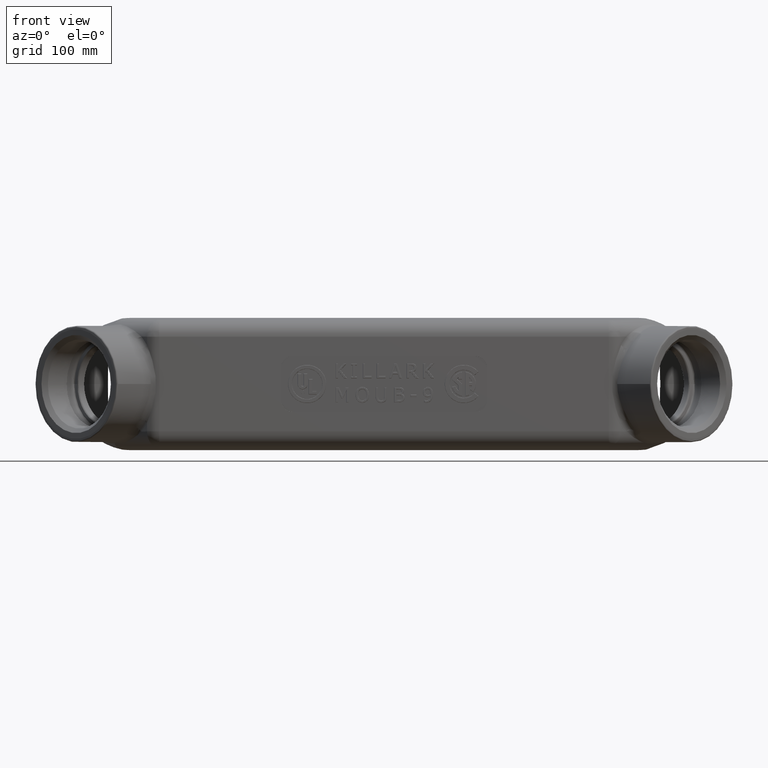
[diagram: clean part render]
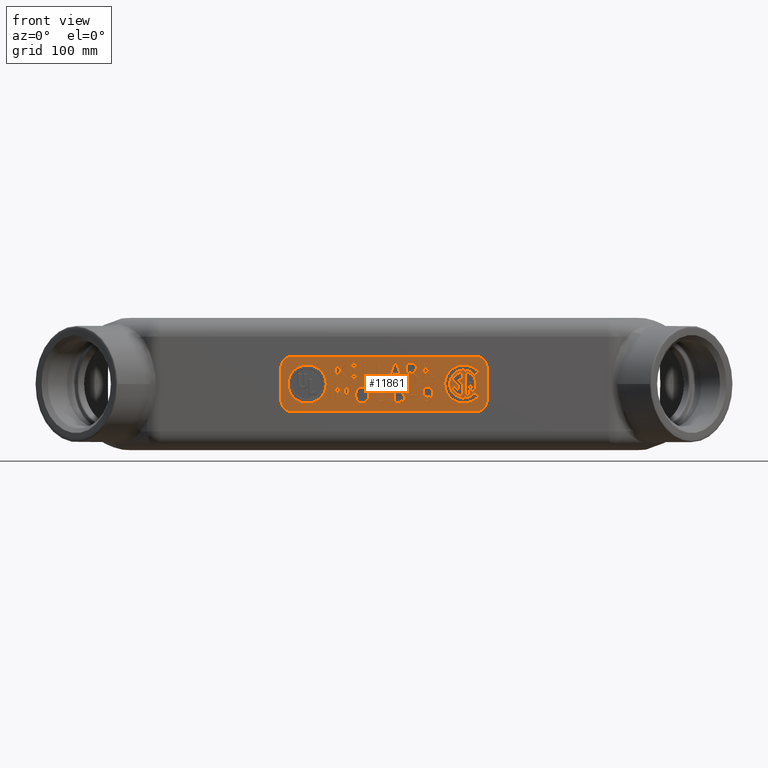
[diagram: same view with one face highlighted and labeled with its STEP entity id]
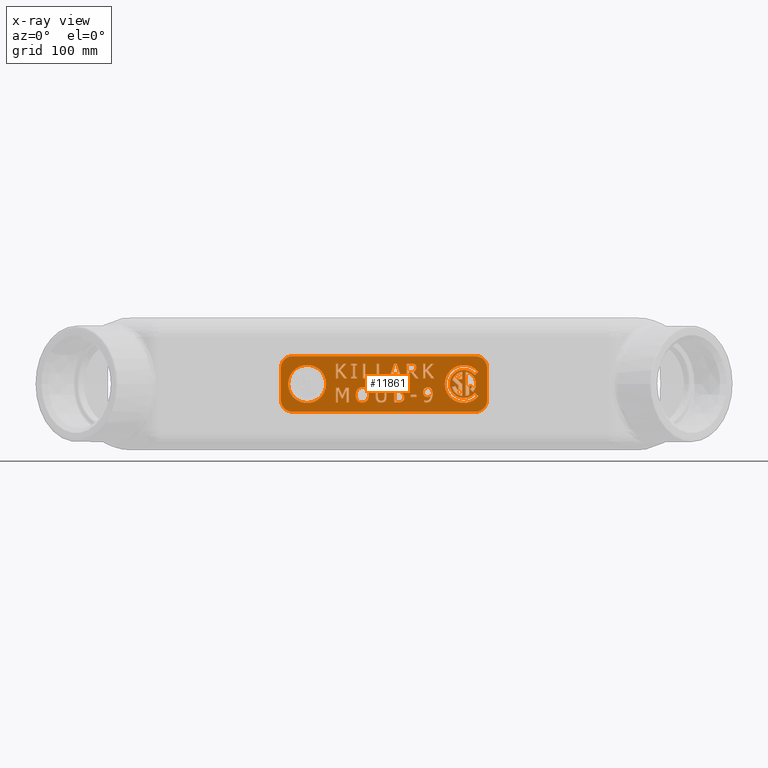
[diagram: x-ray of the same camera — body ghosted, the highlighted face saturated]
A machine part, front view. The second image highlights one B-rep face of the part: STEP entity #11861.
The next image is the same camera in x-ray: the body ghosted, the highlighted face saturated — about 0% of this face is hidden behind the body in this view.
In plain terms, the highlighted planar face has unit normal (0, -1, 0).
Its self-contained STEP definition (entity closure, byte-faithful):
#375=CIRCLE('',#12614,0.820873412263473);
#376=CIRCLE('',#12616,0.499181689950963);
#377=CIRCLE('',#12619,0.499181689950963);
#378=CIRCLE('',#12622,0.499181689950962);
#379=CIRCLE('',#12625,0.499181689950963);
#380=CIRCLE('',#12629,0.601001587736527);
#381=CIRCLE('',#12632,0.820873412263473);
#382=CIRCLE('',#12634,0.359790650236527);
#383=CIRCLE('',#12639,0.528881224763473);
#384=CIRCLE('',#12643,0.359790650236527);
#385=CIRCLE('',#12646,0.528881224763472);
#386=CIRCLE('',#12651,0.359790650236527);
#387=CIRCLE('',#12654,0.528881224763473);
#388=CIRCLE('',#12657,0.528881224763473);
#421=FACE_BOUND('',#2264,.T.);
#422=FACE_BOUND('',#2265,.T.);
#423=FACE_BOUND('',#2266,.T.);
#424=FACE_BOUND('',#2267,.T.);
#425=FACE_BOUND('',#2268,.T.);
#426=FACE_BOUND('',#2269,.T.);
#427=FACE_BOUND('',#2270,.T.);
#428=FACE_BOUND('',#2271,.T.);
#429=FACE_BOUND('',#2272,.T.);
#430=FACE_BOUND('',#2273,.T.);
#431=FACE_BOUND('',#2274,.T.);
#432=FACE_BOUND('',#2275,.T.);
#433=FACE_BOUND('',#2276,.T.);
#434=FACE_BOUND('',#2277,.T.);
#435=FACE_BOUND('',#2278,.T.);
#436=FACE_BOUND('',#2279,.T.);
#437=FACE_BOUND('',#2280,.T.);
#719=PLANE('',#12668);
#1551=FACE_OUTER_BOUND('',#2263,.T.);
#2263=EDGE_LOOP('',(#10734,#10735,#10736,#10737,#10738,#10739,#10740,#10741));
#2264=EDGE_LOOP('',(#10742,#10743,#10744,#10745,#10746,#10747,#10748));
#2265=EDGE_LOOP('',(#10749,#10750,#10751,#10752,#10753,#10754,#10755,#10756,
#10757,#10758,#10759,#10760));
#2266=EDGE_LOOP('',(#10761,#10762,#10763,#10764));
#2267=EDGE_LOOP('',(#10765));
#2268=EDGE_LOOP('',(#10766,#10767,#10768,#10769,#10770,#10771,#10772,#10773,
#10774,#10775,#10776,#10777,#10778,#10779));
#2269=EDGE_LOOP('',(#10780,#10781,#10782,#10783,#10784,#10785,#10786,#10787,
#10788,#10789,#10790,#10791,#10792,#10793));
#2270=EDGE_LOOP('',(#10794,#10795,#10796,#10797,#10798,#10799,#10800,#10801,
#10802));
#2271=EDGE_LOOP('',(#10803,#10804,#10805,#10806,#10807,#10808,#10809,#10810));
#2272=EDGE_LOOP('',(#10811,#10812,#10813,#10814,#10815,#10816,#10817,#10818,
#10819,#10820,#10821,#10822,#10823));
#2273=EDGE_LOOP('',(#10824,#10825,#10826,#10827,#10828,#10829,#10830,#10831,
#10832,#10833,#10834,#10835));
#2274=EDGE_LOOP('',(#10836,#10837,#10838,#10839,#10840,#10841));
#2275=EDGE_LOOP('',(#10842,#10843,#10844,#10845,#10846,#10847,#10848,#10849,
#10850,#10851,#10852));
#2276=EDGE_LOOP('',(#10853,#10854,#10855,#10856,#10857,#10858,#10859,#10860,
#10861,#10862,#10863,#10864));
#2277=EDGE_LOOP('',(#10865,#10866,#10867,#10868,#10869,#10870,#10871,#10872));
#2278=EDGE_LOOP('',(#10873,#10874,#10875,#10876,#10877,#10878,#10879,#10880,
#10881,#10882,#10883,#10884));
#2279=EDGE_LOOP('',(#10885,#10886,#10887,#10888,#10889,#10890));
#2280=EDGE_LOOP('',(#10891,#10892,#10893,#10894));
#2845=LINE('',#29032,#3655);
#2847=LINE('',#29036,#3657);
#2849=LINE('',#29040,#3659);
#2851=LINE('',#29043,#3661);
#2853=LINE('',#29048,#3663);
#2855=LINE('',#29052,#3665);
#2857=LINE('',#29056,#3667);
#2859=LINE('',#29060,#3669);
#2861=LINE('',#29064,#3671);
#2863=LINE('',#29067,#3673);
#2865=LINE('',#29072,#3675);
#2867=LINE('',#29076,#3677);
#2869=LINE('',#29080,#3679);
#2871=LINE('',#29084,#3681);
#2873=LINE('',#29088,#3683);
#2875=LINE('',#29092,#3685);
#2877=LINE('',#29096,#3687);
#2879=LINE('',#29100,#3689);
#2881=LINE('',#29104,#3691);
#2883=LINE('',#29108,#3693);
#2885=LINE('',#29112,#3695);
#2887=LINE('',#29115,#3697);
#2889=LINE('',#29120,#3699);
#2891=LINE('',#29124,#3701);
#2893=LINE('',#29128,#3703);
#2895=LINE('',#29132,#3705);
#2897=LINE('',#29136,#3707);
#2899=LINE('',#29140,#3709);
#2901=LINE('',#29144,#3711);
#2903=LINE('',#29147,#3713);
#2905=LINE('',#29152,#3715);
#2907=LINE('',#29156,#3717);
#2909=LINE('',#29160,#3719);
#2911=LINE('',#29164,#3721);
#2913=LINE('',#29168,#3723);
#2915=LINE('',#29172,#3725);
#2917=LINE('',#29176,#3727);
#2919=LINE('',#29180,#3729);
#2921=LINE('',#29184,#3731);
#2923=LINE('',#29188,#3733);
#2925=LINE('',#29192,#3735);
#2927=LINE('',#29195,#3737);
#2929=LINE('',#29200,#3739);
#2931=LINE('',#29204,#3741);
#2933=LINE('',#29208,#3743);
#2935=LINE('',#29212,#3745);
#2937=LINE('',#29216,#3747);
#2939=LINE('',#29220,#3749);
#2941=LINE('',#29224,#3751);
#2943=LINE('',#29228,#3753);
#2947=LINE('',#29349,#3757);
#2949=LINE('',#29353,#3759);
#2951=LINE('',#29357,#3761);
#2953=LINE('',#29361,#3763);
#2955=LINE('',#29365,#3765);
#2957=LINE('',#29368,#3767);
#2959=LINE('',#29373,#3769);
#2961=LINE('',#29377,#3771);
#2963=LINE('',#29381,#3773);
#2965=LINE('',#29385,#3775);
#2967=LINE('',#29389,#3777);
#2969=LINE('',#29393,#3779);
#2971=LINE('',#29397,#3781);
#2973=LINE('',#29401,#3783);
#2975=LINE('',#29405,#3785);
#2977=LINE('',#29409,#3787);
#2979=LINE('',#29413,#3789);
#2981=LINE('',#29416,#3791);
#2983=LINE('',#29421,#3793);
#2985=LINE('',#29425,#3795);
#2987=LINE('',#29429,#3797);
#2989=LINE('',#29433,#3799);
#2991=LINE('',#29437,#3801);
#2993=LINE('',#29441,#3803);
#2995=LINE('',#29445,#3805);
#2997=LINE('',#29449,#3807);
#2999=LINE('',#29453,#3809);
#3001=LINE('',#29457,#3811);
#3003=LINE('',#29461,#3813);
#3005=LINE('',#29465,#3815);
#3007=LINE('',#29468,#3817);
#3015=LINE('',#30086,#3825);
#3017=LINE('',#30090,#3827);
#3019=LINE('',#30094,#3829);
#3023=LINE('',#30256,#3833);
#3025=LINE('',#30260,#3835);
#3027=LINE('',#30263,#3837);
#3029=LINE('',#30268,#3839);
#3036=LINE('',#30885,#3846);
#3040=LINE('',#30898,#3850);
#3043=LINE('',#30906,#3853);
#3046=LINE('',#30914,#3856);
#3049=LINE('',#30921,#3859);
#3050=LINE('',#30925,#3860);
#3051=LINE('',#30940,#3861);
#3052=LINE('',#30958,#3862);
#3054=LINE('',#30962,#3864);
#3056=LINE('',#30966,#3866);
#3057=LINE('',#30978,#3867);
#3059=LINE('',#30982,#3869);
#3060=LINE('',#30994,#3870);
#3061=LINE('',#31006,#3871);
#3063=LINE('',#31009,#3873);
#3064=LINE('',#31013,#3874);
#3066=LINE('',#31026,#3876);
#3067=LINE('',#31038,#3877);
#3068=LINE('',#31049,#3878);
#3087=LINE('',#31432,#3897);
#3091=LINE('',#31439,#3901);
#3094=LINE('',#31445,#3904);
#3655=VECTOR('',#14509,0.393700787401575);
#3657=VECTOR('',#14513,0.393700787401575);
#3659=VECTOR('',#14517,0.393700787401575);
#3661=VECTOR('',#14521,0.393700787401575);
#3663=VECTOR('',#14525,0.393700787401575);
#3665=VECTOR('',#14529,0.393700787401575);
#3667=VECTOR('',#14533,0.393700787401575);
#3669=VECTOR('',#14537,0.393700787401575);
#3671=VECTOR('',#14541,0.393700787401575);
#3673=VECTOR('',#14545,0.393700787401575);
#3675=VECTOR('',#14549,0.393700787401575);
#3677=VECTOR('',#14553,0.393700787401575);
#3679=VECTOR('',#14557,0.393700787401575);
#3681=VECTOR('',#14561,0.393700787401575);
#3683=VECTOR('',#14565,0.393700787401575);
#3685=VECTOR('',#14569,0.393700787401575);
#3687=VECTOR('',#14573,0.393700787401575);
#3689=VECTOR('',#14577,0.393700787401575);
#3691=VECTOR('',#14581,0.393700787401575);
#3693=VECTOR('',#14585,0.393700787401575);
#3695=VECTOR('',#14589,0.393700787401575);
#3697=VECTOR('',#14593,0.393700787401575);
#3699=VECTOR('',#14597,0.393700787401575);
#3701=VECTOR('',#14601,0.393700787401575);
#3703=VECTOR('',#14605,0.393700787401575);
#3705=VECTOR('',#14609,0.393700787401575);
#3707=VECTOR('',#14613,0.393700787401575);
#3709=VECTOR('',#14617,0.393700787401575);
#3711=VECTOR('',#14621,0.393700787401575);
#3713=VECTOR('',#14625,0.393700787401575);
#3715=VECTOR('',#14629,0.393700787401575);
#3717=VECTOR('',#14633,0.393700787401575);
#3719=VECTOR('',#14637,0.393700787401575);
#3721=VECTOR('',#14641,0.393700787401575);
#3723=VECTOR('',#14645,0.393700787401575);
#3725=VECTOR('',#14649,0.393700787401575);
#3727=VECTOR('',#14653,0.393700787401575);
#3729=VECTOR('',#14657,0.393700787401575);
#3731=VECTOR('',#14661,0.393700787401575);
#3733=VECTOR('',#14665,0.393700787401575);
#3735=VECTOR('',#14669,0.393700787401575);
#3737=VECTOR('',#14673,0.393700787401575);
#3739=VECTOR('',#14677,0.393700787401575);
#3741=VECTOR('',#14681,0.393700787401575);
#3743=VECTOR('',#14685,0.393700787401575);
#3745=VECTOR('',#14689,0.393700787401575);
#3747=VECTOR('',#14693,0.393700787401575);
#3749=VECTOR('',#14697,0.393700787401575);
#3751=VECTOR('',#14701,0.393700787401575);
#3753=VECTOR('',#14705,0.393700787401575);
#3757=VECTOR('',#14711,0.393700787401575);
#3759=VECTOR('',#14715,0.393700787401575);
#3761=VECTOR('',#14719,0.393700787401575);
#3763=VECTOR('',#14723,0.393700787401575);
#3765=VECTOR('',#14727,0.393700787401575);
#3767=VECTOR('',#14731,0.393700787401575);
#3769=VECTOR('',#14735,0.393700787401575);
#3771=VECTOR('',#14739,0.393700787401575);
#3773=VECTOR('',#14743,0.393700787401575);
#3775=VECTOR('',#14747,0.393700787401575);
#3777=VECTOR('',#14751,0.393700787401575);
#3779=VECTOR('',#14755,0.393700787401575);
#3781=VECTOR('',#14759,0.393700787401575);
#3783=VECTOR('',#14763,0.393700787401575);
#3785=VECTOR('',#14767,0.393700787401575);
#3787=VECTOR('',#14771,0.393700787401575);
#3789=VECTOR('',#14775,0.393700787401575);
#3791=VECTOR('',#14779,0.393700787401575);
#3793=VECTOR('',#14783,0.393700787401575);
#3795=VECTOR('',#14787,0.393700787401575);
#3797=VECTOR('',#14791,0.393700787401575);
#3799=VECTOR('',#14795,0.393700787401575);
#3801=VECTOR('',#14799,0.393700787401575);
#3803=VECTOR('',#14803,0.393700787401575);
#3805=VECTOR('',#14807,0.393700787401575);
#3807=VECTOR('',#14811,0.393700787401575);
#3809=VECTOR('',#14815,0.393700787401575);
#3811=VECTOR('',#14819,0.393700787401575);
#3813=VECTOR('',#14823,0.393700787401575);
#3815=VECTOR('',#14827,0.393700787401575);
#3817=VECTOR('',#14831,0.393700787401575);
#3825=VECTOR('',#14841,0.393700787401575);
#3827=VECTOR('',#14845,0.393700787401575);
#3829=VECTOR('',#14849,0.393700787401575);
#3833=VECTOR('',#14855,0.393700787401575);
#3835=VECTOR('',#14859,0.393700787401575);
#3837=VECTOR('',#14863,0.393700787401575);
#3839=VECTOR('',#14867,0.393700787401575);
#3846=VECTOR('',#14876,0.393700787401575);
#3850=VECTOR('',#14890,0.393700787401575);
#3853=VECTOR('',#14899,0.393700787401575);
#3856=VECTOR('',#14908,0.393700787401575);
#3859=VECTOR('',#14917,0.393700787401575);
#3860=VECTOR('',#14920,0.393700787401575);
#3861=VECTOR('',#14927,0.393700787401575);
#3862=VECTOR('',#14938,0.393700787401575);
#3864=VECTOR('',#14942,0.393700787401575);
#3866=VECTOR('',#14946,0.393700787401575);
#3867=VECTOR('',#14953,0.393700787401575);
#3869=VECTOR('',#14957,0.393700787401575);
#3870=VECTOR('',#14964,0.393700787401575);
#3871=VECTOR('',#14971,0.393700787401575);
#3873=VECTOR('',#14975,0.393700787401575);
#3874=VECTOR('',#14978,0.393700787401575);
#3876=VECTOR('',#14986,0.393700787401575);
#3877=VECTOR('',#14993,0.393700787401575);
#3878=VECTOR('',#15000,0.393700787401575);
#3897=VECTOR('',#15033,0.393700787401575);
#3901=VECTOR('',#15039,0.393700787401575);
#3904=VECTOR('',#15044,0.393700787401575);
#3910=B_SPLINE_CURVE_WITH_KNOTS('',3,(#15115,#15116,#15117,#15118,#15119,
#15120,#15121),.UNSPECIFIED.,.F.,.F.,(4,3,4),(0.0422752198807063,0.216155657472652,
0.41837060594443),.UNSPECIFIED.);
#4411=B_SPLINE_CURVE_WITH_KNOTS('',3,(#29265,#29266,#29267,#29268,#29269,
#29270,#29271),.UNSPECIFIED.,.F.,.F.,(4,3,4),(0.,0.205582315244109,0.392861074518108),
 .UNSPECIFIED.);
#4412=B_SPLINE_CURVE_WITH_KNOTS('',3,(#29302,#29303,#29304,#29305,#29306,
#29307,#29308),.UNSPECIFIED.,.F.,.F.,(4,3,4),(0.,0.264671271645441,0.529342543290882),
 .UNSPECIFIED.);
#4413=B_SPLINE_CURVE_WITH_KNOTS('',3,(#29338,#29339,#29340,#29341,#29342,
#29343,#29344),.UNSPECIFIED.,.F.,.F.,(4,3,4),(0.,0.215803444490192,0.431606888980385),
 .UNSPECIFIED.);
#4415=B_SPLINE_CURVE_WITH_KNOTS('',3,(#29524,#29525,#29526,#29527,#29528,
#29529,#29530,#29531,#29532,#29533),.UNSPECIFIED.,.F.,.F.,(4,3,3,4),(0.,
0.929240588888489,1.85848117777698,1.85933637389273),.UNSPECIFIED.);
#4416=B_SPLINE_CURVE_WITH_KNOTS('',3,(#29576,#29577,#29578,#29579,#29580,
#29581,#29582,#29583,#29584,#29585),.UNSPECIFIED.,.F.,.F.,(4,3,3,4),(0.00515248867651186,
0.00517862222963093,0.0935930904902089,0.182007558750787),.UNSPECIFIED.);
#4418=B_SPLINE_CURVE_WITH_KNOTS('',3,(#29631,#29632,#29633,#29634,#29635,
#29636,#29637,#29638,#29639,#29640),.UNSPECIFIED.,.F.,.F.,(4,3,3,4),(0.,
0.332244840098212,0.664489680196424,0.664586047403275),.UNSPECIFIED.);
#4419=B_SPLINE_CURVE_WITH_KNOTS('',3,(#29683,#29684,#29685,#29686,#29687,
#29688,#29689,#29690,#29691,#29692),.UNSPECIFIED.,.F.,.F.,(4,3,3,4),(0.00547410024253794,
0.00548656964042798,0.113898706159689,0.222310842678949),.UNSPECIFIED.);
#4421=B_SPLINE_CURVE_WITH_KNOTS('',3,(#29750,#29751,#29752,#29753,#29754,
#29755,#29756,#29757,#29758,#29759),.UNSPECIFIED.,.F.,.F.,(4,3,3,4),(0.,
0.565187707817978,1.13037541563596,1.1304437858227),.UNSPECIFIED.);
#4422=B_SPLINE_CURVE_WITH_KNOTS('',3,(#29802,#29803,#29804,#29805,#29806,
#29807,#29808,#29809,#29810,#29811),.UNSPECIFIED.,.F.,.F.,(4,3,3,4),(0.00502477468028741,
0.00508416741698059,0.0890334756060951,0.17298278379521),.UNSPECIFIED.);
#4424=B_SPLINE_CURVE_WITH_KNOTS('',3,(#29863,#29864,#29865,#29866,#29867,
#29868,#29869,#29870,#29871,#29872),.UNSPECIFIED.,.F.,.F.,(4,3,3,4),(0.,
0.298980694479341,0.597961388958681,0.598177449308782),.UNSPECIFIED.);
#4425=B_SPLINE_CURVE_WITH_KNOTS('',3,(#29914,#29915,#29916,#29917,#29918,
#29919,#29920,#29921,#29922,#29923),.UNSPECIFIED.,.F.,.F.,(4,3,3,4),(0.00500683785018782,
0.00510369068859155,0.108795090489624,0.212486490290657),.UNSPECIFIED.);
#4426=B_SPLINE_CURVE_WITH_KNOTS('',3,(#29955,#29956,#29957,#29958,#29959,
#29960,#29961),.UNSPECIFIED.,.F.,.F.,(4,3,4),(3.17342867589384E-6,0.107135738484488,
0.214270796601755),.UNSPECIFIED.);
#4428=B_SPLINE_CURVE_WITH_KNOTS('',3,(#29997,#29998,#29999,#30000,#30001,
#30002,#30003),.UNSPECIFIED.,.F.,.F.,(4,3,4),(0.,0.13132773422919,0.262652558425129),
 .UNSPECIFIED.);
#4429=B_SPLINE_CURVE_WITH_KNOTS('',3,(#30034,#30035,#30036,#30037,#30038,
#30039,#30040),.UNSPECIFIED.,.F.,.F.,(4,3,4),(3.13762403316277E-6,0.197374368483281,
0.394749953259535),.UNSPECIFIED.);
#4431=B_SPLINE_CURVE_WITH_KNOTS('',3,(#30076,#30077,#30078,#30079,#30080,
#30081,#30082),.UNSPECIFIED.,.F.,.F.,(4,3,4),(0.,0.441340130761246,0.882670001529556),
 .UNSPECIFIED.);
#4432=B_SPLINE_CURVE_WITH_KNOTS('',3,(#30125,#30126,#30127,#30128,#30129,
#30130,#30131),.UNSPECIFIED.,.F.,.F.,(4,3,4),(8.23968966317242E-5,0.176791475755887,
0.353559926796422),.UNSPECIFIED.);
#4434=B_SPLINE_CURVE_WITH_KNOTS('',3,(#30167,#30168,#30169,#30170,#30171,
#30172,#30173),.UNSPECIFIED.,.F.,.F.,(4,3,4),(0.,0.429594518936079,0.859025913470317),
 .UNSPECIFIED.);
#4435=B_SPLINE_CURVE_WITH_KNOTS('',3,(#30204,#30205,#30206,#30207,#30208,
#30209),.UNSPECIFIED.,.F.,.F.,(4,2,4),(0.000156144745119145,0.202546367241953,
0.363239119009136),.UNSPECIFIED.);
#4437=B_SPLINE_CURVE_WITH_KNOTS('',3,(#30245,#30246,#30247,#30248,#30249,
#30250,#30251,#30252),.UNSPECIFIED.,.F.,.F.,(4,2,2,4),(0.,0.470792288328722,
0.895532491845364,1.31152355080962),.UNSPECIFIED.);
#4439=B_SPLINE_CURVE_WITH_KNOTS('',3,(#30326,#30327,#30328,#30329,#30330,
#30331,#30332,#30333,#30334,#30335),.UNSPECIFIED.,.F.,.F.,(4,3,3,4),(0.,
0.107648749035631,0.215297498071262,0.234810927186639),.UNSPECIFIED.);
#4440=B_SPLINE_CURVE_WITH_KNOTS('',3,(#30374,#30375,#30376,#30377,#30378,
#30379,#30380,#30381,#30382,#30383,#30384,#30385,#30386),.UNSPECIFIED.,
 .F.,.F.,(4,3,3,3,4),(0.00570294028205238,0.022418641843671,0.0558500449669131,
0.122712851213397,0.239714057663817),.UNSPECIFIED.);
#4442=B_SPLINE_CURVE_WITH_KNOTS('',3,(#30431,#30432,#30433,#30434,#30435,
#30436,#30437,#30438,#30439,#30440,#30441,#30442,#30443),.UNSPECIFIED.,
 .F.,.F.,(4,3,3,3,4),(0.,0.811628469983806,1.27545262491151,1.50736470237537,
1.62332074110665),.UNSPECIFIED.);
#4443=B_SPLINE_CURVE_WITH_KNOTS('',3,(#30486,#30487,#30488,#30489,#30490,
#30491,#30492,#30493,#30494,#30495,#30496,#30497,#30498,#30499,#30500,#30501),
 .UNSPECIFIED.,.F.,.F.,(4,3,3,3,3,4),(0.00446464600508559,0.0153111701206929,
0.0261576942363054,0.0478507424675303,0.0803903148143677,0.156310170004232),
 .UNSPECIFIED.);
#4445=B_SPLINE_CURVE_WITH_KNOTS('',3,(#30546,#30547,#30548,#30549,#30550,
#30551,#30552,#30553,#30554,#30555,#30556,#30557,#30558),.UNSPECIFIED.,
 .F.,.F.,(4,3,3,3,4),(0.,0.3976307676176,0.624870223703468,0.738489951746403,
0.79529981576787),.UNSPECIFIED.);
#4446=B_SPLINE_CURVE_WITH_KNOTS('',3,(#30589,#30590,#30591,#30592,#30593,
#30594,#30595,#30596),.UNSPECIFIED.,.F.,.F.,(4,2,2,4),(0.000113956857562934,
0.178598647929933,0.273461682437044,0.352454671751438),.UNSPECIFIED.);
#4448=B_SPLINE_CURVE_WITH_KNOTS('',3,(#30634,#30635,#30636,#30637,#30638,
#30639),.UNSPECIFIED.,.F.,.F.,(4,2,4),(0.,0.342622047515819,0.912479637420664),
 .UNSPECIFIED.);
#4449=B_SPLINE_CURVE_WITH_KNOTS('',3,(#30682,#30683,#30684,#30685,#30686,
#30687,#30688,#30689,#30690,#30691),.UNSPECIFIED.,.F.,.F.,(4,3,3,4),(0.00388060651767113,
0.00393754662655587,0.103111794284899,0.202286041943243),.UNSPECIFIED.);
#4451=B_SPLINE_CURVE_WITH_KNOTS('',3,(#30737,#30738,#30739,#30740,#30741,
#30742,#30743,#30744,#30745,#30746),.UNSPECIFIED.,.F.,.F.,(4,3,3,4),(0.,
0.539769839379829,1.07953967875966,1.07990170419036),.UNSPECIFIED.);
#4452=B_SPLINE_CURVE_WITH_KNOTS('',3,(#30777,#30778,#30779,#30780,#30781,
#30782),.UNSPECIFIED.,.F.,.F.,(4,2,4),(0.0464613040440226,0.259871397327392,
0.624485828811843),.UNSPECIFIED.);
#4454=B_SPLINE_CURVE_WITH_KNOTS('',3,(#30819,#30820,#30821,#30822,#30823,
#30824,#30825),.UNSPECIFIED.,.F.,.F.,(4,3,4),(0.,0.281691583575422,0.538733640616922),
 .UNSPECIFIED.);
#4455=B_SPLINE_CURVE_WITH_KNOTS('',3,(#30868,#30869,#30870,#30871,#30872,
#30873,#30874,#30875,#30876,#30877),.UNSPECIFIED.,.F.,.F.,(4,3,3,4),(0.0110264001163227,
0.0157745069506634,0.0680889280968229,0.120403349242982),.UNSPECIFIED.);
#4471=B_SPLINE_CURVE_WITH_KNOTS('',3,(#31491,#31492,#31493,#31494,#31495,
#31496,#31497),.UNSPECIFIED.,.F.,.F.,(4,3,4),(0.,0.257676687027117,0.439095925234525),
 .UNSPECIFIED.);
#4473=B_SPLINE_CURVE_WITH_KNOTS('',3,(#31547,#31548,#31549,#31550,#31551,
#31552,#31553,#31554,#31555,#31556),.UNSPECIFIED.,.F.,.F.,(4,3,3,4),(0.00413645103894645,
0.0041805995123403,0.0744086455651626,0.144636691617985),.UNSPECIFIED.);
#4476=B_SPLINE_CURVE_WITH_KNOTS('',3,(#31611,#31612,#31613,#31614,#31615,
#31616,#31617,#31618),.UNSPECIFIED.,.F.,.F.,(4,2,2,4),(0.000228639444076081,
0.130215774041,0.192652668493293,0.249733959754258),.UNSPECIFIED.);
#4477=B_SPLINE_CURVE_WITH_KNOTS('',3,(#31620,#31621,#31622,#31623,#31624,
#31625,#31626),.UNSPECIFIED.,.F.,.F.,(4,3,4),(0.,0.329113221916586,0.60117108583799),
 .UNSPECIFIED.);
#4478=B_SPLINE_CURVE_WITH_KNOTS('',3,(#31627,#31628,#31629,#31630,#31631,
#31632,#31633,#31634,#31635,#31636),.UNSPECIFIED.,.F.,.F.,(4,3,3,4),(0.,
0.257787442210239,0.515574884420478,0.515768423583674),.UNSPECIFIED.);
#4483=VERTEX_POINT('',#15095);
#4486=VERTEX_POINT('',#15113);
#5440=VERTEX_POINT('',#29029);
#5441=VERTEX_POINT('',#29031);
#5442=VERTEX_POINT('',#29035);
#5443=VERTEX_POINT('',#29039);
#5444=VERTEX_POINT('',#29045);
#5445=VERTEX_POINT('',#29047);
#5446=VERTEX_POINT('',#29051);
#5447=VERTEX_POINT('',#29055);
#5448=VERTEX_POINT('',#29059);
#5449=VERTEX_POINT('',#29063);
#5450=VERTEX_POINT('',#29069);
#5451=VERTEX_POINT('',#29071);
#5452=VERTEX_POINT('',#29075);
#5453=VERTEX_POINT('',#29079);
#5454=VERTEX_POINT('',#29083);
#5455=VERTEX_POINT('',#29087);
#5456=VERTEX_POINT('',#29091);
#5457=VERTEX_POINT('',#29095);
#5458=VERTEX_POINT('',#29099);
#5459=VERTEX_POINT('',#29103);
#5460=VERTEX_POINT('',#29107);
#5461=VERTEX_POINT('',#29111);
#5462=VERTEX_POINT('',#29117);
#5463=VERTEX_POINT('',#29119);
#5464=VERTEX_POINT('',#29123);
#5465=VERTEX_POINT('',#29127);
#5466=VERTEX_POINT('',#29131);
#5467=VERTEX_POINT('',#29135);
#5468=VERTEX_POINT('',#29139);
#5469=VERTEX_POINT('',#29143);
#5470=VERTEX_POINT('',#29149);
#5471=VERTEX_POINT('',#29151);
#5472=VERTEX_POINT('',#29155);
#5473=VERTEX_POINT('',#29159);
#5474=VERTEX_POINT('',#29163);
#5475=VERTEX_POINT('',#29167);
#5476=VERTEX_POINT('',#29171);
#5477=VERTEX_POINT('',#29175);
#5478=VERTEX_POINT('',#29179);
#5479=VERTEX_POINT('',#29183);
#5480=VERTEX_POINT('',#29187);
#5481=VERTEX_POINT('',#29191);
#5482=VERTEX_POINT('',#29197);
#5483=VERTEX_POINT('',#29199);
#5484=VERTEX_POINT('',#29203);
#5485=VERTEX_POINT('',#29207);
#5486=VERTEX_POINT('',#29211);
#5487=VERTEX_POINT('',#29215);
#5488=VERTEX_POINT('',#29219);
#5489=VERTEX_POINT('',#29223);
#5490=VERTEX_POINT('',#29227);
#5491=VERTEX_POINT('',#29264);
#5492=VERTEX_POINT('',#29301);
#5493=VERTEX_POINT('',#29346);
#5494=VERTEX_POINT('',#29348);
#5495=VERTEX_POINT('',#29352);
#5496=VERTEX_POINT('',#29356);
#5497=VERTEX_POINT('',#29360);
#5498=VERTEX_POINT('',#29364);
#5499=VERTEX_POINT('',#29370);
#5500=VERTEX_POINT('',#29372);
#5501=VERTEX_POINT('',#29376);
#5502=VERTEX_POINT('',#29380);
#5503=VERTEX_POINT('',#29384);
#5504=VERTEX_POINT('',#29388);
#5505=VERTEX_POINT('',#29392);
#5506=VERTEX_POINT('',#29396);
#5507=VERTEX_POINT('',#29400);
#5508=VERTEX_POINT('',#29404);
#5509=VERTEX_POINT('',#29408);
#5510=VERTEX_POINT('',#29412);
#5511=VERTEX_POINT('',#29418);
#5512=VERTEX_POINT('',#29420);
#5513=VERTEX_POINT('',#29424);
#5514=VERTEX_POINT('',#29428);
#5515=VERTEX_POINT('',#29432);
#5516=VERTEX_POINT('',#29436);
#5517=VERTEX_POINT('',#29440);
#5518=VERTEX_POINT('',#29444);
#5519=VERTEX_POINT('',#29448);
#5520=VERTEX_POINT('',#29452);
#5521=VERTEX_POINT('',#29456);
#5522=VERTEX_POINT('',#29460);
#5523=VERTEX_POINT('',#29464);
#5524=VERTEX_POINT('',#29509);
#5525=VERTEX_POINT('',#29523);
#5526=VERTEX_POINT('',#29575);
#5527=VERTEX_POINT('',#29630);
#5528=VERTEX_POINT('',#29682);
#5529=VERTEX_POINT('',#29749);
#5530=VERTEX_POINT('',#29801);
#5531=VERTEX_POINT('',#29862);
#5532=VERTEX_POINT('',#29952);
#5533=VERTEX_POINT('',#29954);
#5534=VERTEX_POINT('',#29996);
#5535=VERTEX_POINT('',#30033);
#5536=VERTEX_POINT('',#30075);
#5537=VERTEX_POINT('',#30085);
#5538=VERTEX_POINT('',#30089);
#5539=VERTEX_POINT('',#30093);
#5540=VERTEX_POINT('',#30124);
#5541=VERTEX_POINT('',#30166);
#5542=VERTEX_POINT('',#30203);
#5543=VERTEX_POINT('',#30244);
#5544=VERTEX_POINT('',#30255);
#5545=VERTEX_POINT('',#30259);
#5546=VERTEX_POINT('',#30265);
#5547=VERTEX_POINT('',#30267);
#5548=VERTEX_POINT('',#30325);
#5549=VERTEX_POINT('',#30373);
#5550=VERTEX_POINT('',#30430);
#5551=VERTEX_POINT('',#30485);
#5552=VERTEX_POINT('',#30545);
#5553=VERTEX_POINT('',#30588);
#5554=VERTEX_POINT('',#30633);
#5555=VERTEX_POINT('',#30681);
#5556=VERTEX_POINT('',#30736);
#5557=VERTEX_POINT('',#30776);
#5558=VERTEX_POINT('',#30818);
#5559=VERTEX_POINT('',#30867);
#5560=VERTEX_POINT('',#30887);
#5561=VERTEX_POINT('',#30891);
#5562=VERTEX_POINT('',#30892);
#5563=VERTEX_POINT('',#30897);
#5564=VERTEX_POINT('',#30901);
#5565=VERTEX_POINT('',#30905);
#5566=VERTEX_POINT('',#30909);
#5567=VERTEX_POINT('',#30913);
#5568=VERTEX_POINT('',#30917);
#5569=VERTEX_POINT('',#30923);
#5570=VERTEX_POINT('',#30924);
#5571=VERTEX_POINT('',#30933);
#5572=VERTEX_POINT('',#30939);
#5573=VERTEX_POINT('',#30947);
#5574=VERTEX_POINT('',#30948);
#5575=VERTEX_POINT('',#30957);
#5576=VERTEX_POINT('',#30961);
#5577=VERTEX_POINT('',#30965);
#5578=VERTEX_POINT('',#30971);
#5579=VERTEX_POINT('',#30977);
#5580=VERTEX_POINT('',#30981);
#5581=VERTEX_POINT('',#30987);
#5582=VERTEX_POINT('',#30993);
#5583=VERTEX_POINT('',#30999);
#5584=VERTEX_POINT('',#31005);
#5585=VERTEX_POINT('',#31011);
#5586=VERTEX_POINT('',#31012);
#5587=VERTEX_POINT('',#31019);
#5588=VERTEX_POINT('',#31025);
#5589=VERTEX_POINT('',#31031);
#5590=VERTEX_POINT('',#31037);
#5591=VERTEX_POINT('',#31043);
#5608=VERTEX_POINT('',#31429);
#5609=VERTEX_POINT('',#31431);
#5611=VERTEX_POINT('',#31437);
#5613=VERTEX_POINT('',#31443);
#5615=VERTEX_POINT('',#31482);
#5617=VERTEX_POINT('',#31546);
#5619=VERTEX_POINT('',#31609);
#5625=EDGE_CURVE('',#4483,#4486,#3910,.T.);
#7035=EDGE_CURVE('',#5441,#5440,#2845,.T.);
#7037=EDGE_CURVE('',#5442,#5441,#2847,.T.);
#7039=EDGE_CURVE('',#5443,#5442,#2849,.T.);
#7041=EDGE_CURVE('',#5440,#5443,#2851,.T.);
#7043=EDGE_CURVE('',#5445,#5444,#2853,.T.);
#7045=EDGE_CURVE('',#5446,#5445,#2855,.T.);
#7047=EDGE_CURVE('',#5447,#5446,#2857,.T.);
#7049=EDGE_CURVE('',#5448,#5447,#2859,.T.);
#7051=EDGE_CURVE('',#5449,#5448,#2861,.T.);
#7053=EDGE_CURVE('',#5444,#5449,#2863,.T.);
#7055=EDGE_CURVE('',#5451,#5450,#2865,.T.);
#7057=EDGE_CURVE('',#5452,#5451,#2867,.T.);
#7059=EDGE_CURVE('',#5453,#5452,#2869,.T.);
#7061=EDGE_CURVE('',#5454,#5453,#2871,.T.);
#7063=EDGE_CURVE('',#5455,#5454,#2873,.T.);
#7065=EDGE_CURVE('',#5456,#5455,#2875,.T.);
#7067=EDGE_CURVE('',#5457,#5456,#2877,.T.);
#7069=EDGE_CURVE('',#5458,#5457,#2879,.T.);
#7071=EDGE_CURVE('',#5459,#5458,#2881,.T.);
#7073=EDGE_CURVE('',#5460,#5459,#2883,.T.);
#7075=EDGE_CURVE('',#5461,#5460,#2885,.T.);
#7077=EDGE_CURVE('',#5450,#5461,#2887,.T.);
#7079=EDGE_CURVE('',#5463,#5462,#2889,.T.);
#7081=EDGE_CURVE('',#5464,#5463,#2891,.T.);
#7083=EDGE_CURVE('',#5465,#5464,#2893,.T.);
#7085=EDGE_CURVE('',#5466,#5465,#2895,.T.);
#7087=EDGE_CURVE('',#5467,#5466,#2897,.T.);
#7089=EDGE_CURVE('',#5468,#5467,#2899,.T.);
#7091=EDGE_CURVE('',#5469,#5468,#2901,.T.);
#7093=EDGE_CURVE('',#5462,#5469,#2903,.T.);
#7095=EDGE_CURVE('',#5471,#5470,#2905,.T.);
#7097=EDGE_CURVE('',#5472,#5471,#2907,.T.);
#7099=EDGE_CURVE('',#5473,#5472,#2909,.T.);
#7101=EDGE_CURVE('',#5474,#5473,#2911,.T.);
#7103=EDGE_CURVE('',#5475,#5474,#2913,.T.);
#7105=EDGE_CURVE('',#5476,#5475,#2915,.T.);
#7107=EDGE_CURVE('',#5477,#5476,#2917,.T.);
#7109=EDGE_CURVE('',#5478,#5477,#2919,.T.);
#7111=EDGE_CURVE('',#5479,#5478,#2921,.T.);
#7113=EDGE_CURVE('',#5480,#5479,#2923,.T.);
#7115=EDGE_CURVE('',#5481,#5480,#2925,.T.);
#7117=EDGE_CURVE('',#5470,#5481,#2927,.T.);
#7119=EDGE_CURVE('',#5483,#5482,#2929,.T.);
#7121=EDGE_CURVE('',#5484,#5483,#2931,.T.);
#7123=EDGE_CURVE('',#5485,#5484,#2933,.T.);
#7125=EDGE_CURVE('',#5486,#5485,#2935,.T.);
#7127=EDGE_CURVE('',#5487,#5486,#2937,.T.);
#7129=EDGE_CURVE('',#5488,#5487,#2939,.T.);
#7131=EDGE_CURVE('',#5489,#5488,#2941,.T.);
#7133=EDGE_CURVE('',#5490,#5489,#2943,.T.);
#7135=EDGE_CURVE('',#5491,#5490,#4411,.T.);
#7137=EDGE_CURVE('',#5492,#5491,#4412,.T.);
#7139=EDGE_CURVE('',#5482,#5492,#4413,.T.);
#7141=EDGE_CURVE('',#5494,#5493,#2947,.T.);
#7143=EDGE_CURVE('',#5495,#5494,#2949,.T.);
#7145=EDGE_CURVE('',#5496,#5495,#2951,.T.);
#7147=EDGE_CURVE('',#5497,#5496,#2953,.T.);
#7149=EDGE_CURVE('',#5498,#5497,#2955,.T.);
#7151=EDGE_CURVE('',#5493,#5498,#2957,.T.);
#7153=EDGE_CURVE('',#5500,#5499,#2959,.T.);
#7155=EDGE_CURVE('',#5501,#5500,#2961,.T.);
#7157=EDGE_CURVE('',#5502,#5501,#2963,.T.);
#7159=EDGE_CURVE('',#5503,#5502,#2965,.T.);
#7161=EDGE_CURVE('',#5504,#5503,#2967,.T.);
#7163=EDGE_CURVE('',#5505,#5504,#2969,.T.);
#7165=EDGE_CURVE('',#5506,#5505,#2971,.T.);
#7167=EDGE_CURVE('',#5507,#5506,#2973,.T.);
#7169=EDGE_CURVE('',#5508,#5507,#2975,.T.);
#7171=EDGE_CURVE('',#5509,#5508,#2977,.T.);
#7173=EDGE_CURVE('',#5510,#5509,#2979,.T.);
#7175=EDGE_CURVE('',#5499,#5510,#2981,.T.);
#7177=EDGE_CURVE('',#5512,#5511,#2983,.T.);
#7179=EDGE_CURVE('',#5513,#5512,#2985,.T.);
#7181=EDGE_CURVE('',#5514,#5513,#2987,.T.);
#7183=EDGE_CURVE('',#5515,#5514,#2989,.T.);
#7185=EDGE_CURVE('',#5516,#5515,#2991,.T.);
#7187=EDGE_CURVE('',#5517,#5516,#2993,.T.);
#7189=EDGE_CURVE('',#5518,#5517,#2995,.T.);
#7191=EDGE_CURVE('',#5519,#5518,#2997,.T.);
#7193=EDGE_CURVE('',#5520,#5519,#2999,.T.);
#7195=EDGE_CURVE('',#5521,#5520,#3001,.T.);
#7197=EDGE_CURVE('',#5522,#5521,#3003,.T.);
#7199=EDGE_CURVE('',#5523,#5522,#3005,.T.);
#7201=EDGE_CURVE('',#5511,#5523,#3007,.T.);
#7203=EDGE_CURVE('',#5525,#5524,#4415,.T.);
#7205=EDGE_CURVE('',#5526,#5525,#4416,.T.);
#7207=EDGE_CURVE('',#5527,#5526,#4418,.T.);
#7209=EDGE_CURVE('',#5528,#5527,#4419,.T.);
#7211=EDGE_CURVE('',#5529,#5528,#4421,.T.);
#7213=EDGE_CURVE('',#5530,#5529,#4422,.T.);
#7215=EDGE_CURVE('',#5531,#5530,#4424,.T.);
#7217=EDGE_CURVE('',#5524,#5531,#4425,.T.);
#7219=EDGE_CURVE('',#5533,#5532,#4426,.T.);
#7221=EDGE_CURVE('',#5534,#5533,#4428,.T.);
#7223=EDGE_CURVE('',#5535,#5534,#4429,.T.);
#7225=EDGE_CURVE('',#5536,#5535,#4431,.T.);
#7227=EDGE_CURVE('',#5537,#5536,#3015,.T.);
#7229=EDGE_CURVE('',#5538,#5537,#3017,.T.);
#7231=EDGE_CURVE('',#5539,#5538,#3019,.T.);
#7233=EDGE_CURVE('',#5540,#5539,#4432,.T.);
#7235=EDGE_CURVE('',#5541,#5540,#4434,.T.);
#7237=EDGE_CURVE('',#5542,#5541,#4435,.T.);
#7239=EDGE_CURVE('',#5543,#5542,#4437,.T.);
#7241=EDGE_CURVE('',#5544,#5543,#3023,.T.);
#7243=EDGE_CURVE('',#5545,#5544,#3025,.T.);
#7245=EDGE_CURVE('',#5532,#5545,#3027,.T.);
#7247=EDGE_CURVE('',#5547,#5546,#3029,.T.);
#7249=EDGE_CURVE('',#5548,#5547,#4439,.T.);
#7251=EDGE_CURVE('',#5549,#5548,#4440,.T.);
#7253=EDGE_CURVE('',#5550,#5549,#4442,.T.);
#7255=EDGE_CURVE('',#5551,#5550,#4443,.T.);
#7257=EDGE_CURVE('',#5552,#5551,#4445,.T.);
#7259=EDGE_CURVE('',#5553,#5552,#4446,.T.);
#7261=EDGE_CURVE('',#5554,#5553,#4448,.T.);
#7263=EDGE_CURVE('',#5555,#5554,#4449,.T.);
#7265=EDGE_CURVE('',#5556,#5555,#4451,.T.);
#7267=EDGE_CURVE('',#5557,#5556,#4452,.T.);
#7269=EDGE_CURVE('',#5558,#5557,#4454,.T.);
#7271=EDGE_CURVE('',#5559,#5558,#4455,.T.);
#7273=EDGE_CURVE('',#5546,#5559,#3036,.T.);
#7275=EDGE_CURVE('',#5560,#5560,#375,.T.);
#7276=EDGE_CURVE('',#5561,#5562,#376,.T.);
#7279=EDGE_CURVE('',#5563,#5561,#3040,.T.);
#7281=EDGE_CURVE('',#5564,#5563,#377,.T.);
#7283=EDGE_CURVE('',#5565,#5564,#3043,.T.);
#7285=EDGE_CURVE('',#5566,#5565,#378,.T.);
#7287=EDGE_CURVE('',#5567,#5566,#3046,.T.);
#7289=EDGE_CURVE('',#5568,#5567,#379,.T.);
#7291=EDGE_CURVE('',#5562,#5568,#3049,.T.);
#7292=EDGE_CURVE('',#5569,#5570,#3050,.T.);
#7295=EDGE_CURVE('',#5571,#5569,#380,.T.);
#7297=EDGE_CURVE('',#5572,#5571,#3051,.T.);
#7299=EDGE_CURVE('',#5570,#5572,#381,.T.);
#7300=EDGE_CURVE('',#5573,#5574,#382,.T.);
#7303=EDGE_CURVE('',#5575,#5573,#3052,.T.);
#7305=EDGE_CURVE('',#5576,#5575,#3054,.T.);
#7307=EDGE_CURVE('',#5577,#5576,#3056,.T.);
#7309=EDGE_CURVE('',#5578,#5577,#383,.T.);
#7311=EDGE_CURVE('',#5579,#5578,#3057,.T.);
#7313=EDGE_CURVE('',#5580,#5579,#3059,.T.);
#7315=EDGE_CURVE('',#5581,#5580,#384,.T.);
#7317=EDGE_CURVE('',#5582,#5581,#3060,.T.);
#7319=EDGE_CURVE('',#5583,#5582,#385,.T.);
#7321=EDGE_CURVE('',#5584,#5583,#3061,.T.);
#7323=EDGE_CURVE('',#5574,#5584,#3063,.T.);
#7324=EDGE_CURVE('',#5585,#5586,#3064,.T.);
#7327=EDGE_CURVE('',#5587,#5585,#386,.T.);
#7329=EDGE_CURVE('',#5588,#5587,#3066,.T.);
#7331=EDGE_CURVE('',#5589,#5588,#387,.T.);
#7333=EDGE_CURVE('',#5590,#5589,#3067,.T.);
#7335=EDGE_CURVE('',#5591,#5590,#388,.T.);
#7337=EDGE_CURVE('',#5586,#5591,#3068,.T.);
#7368=EDGE_CURVE('',#5609,#5608,#3087,.T.);
#7372=EDGE_CURVE('',#5608,#5611,#3091,.T.);
#7375=EDGE_CURVE('',#5611,#5613,#3094,.T.);
#7378=EDGE_CURVE('',#5613,#5615,#4471,.T.);
#7380=EDGE_CURVE('',#5617,#5609,#4473,.T.);
#7384=EDGE_CURVE('',#5615,#5619,#4476,.T.);
#7385=EDGE_CURVE('',#5619,#4483,#4477,.T.);
#7386=EDGE_CURVE('',#4486,#5617,#4478,.T.);
#10734=ORIENTED_EDGE('',*,*,#7291,.T.);
#10735=ORIENTED_EDGE('',*,*,#7289,.T.);
#10736=ORIENTED_EDGE('',*,*,#7287,.T.);
#10737=ORIENTED_EDGE('',*,*,#7285,.T.);
#10738=ORIENTED_EDGE('',*,*,#7283,.T.);
#10739=ORIENTED_EDGE('',*,*,#7281,.T.);
#10740=ORIENTED_EDGE('',*,*,#7279,.T.);
#10741=ORIENTED_EDGE('',*,*,#7276,.T.);
#10742=ORIENTED_EDGE('',*,*,#7337,.T.);
#10743=ORIENTED_EDGE('',*,*,#7335,.T.);
#10744=ORIENTED_EDGE('',*,*,#7333,.T.);
#10745=ORIENTED_EDGE('',*,*,#7331,.T.);
#10746=ORIENTED_EDGE('',*,*,#7329,.T.);
#10747=ORIENTED_EDGE('',*,*,#7327,.T.);
#10748=ORIENTED_EDGE('',*,*,#7324,.T.);
#10749=ORIENTED_EDGE('',*,*,#7323,.T.);
#10750=ORIENTED_EDGE('',*,*,#7321,.T.);
#10751=ORIENTED_EDGE('',*,*,#7319,.T.);
#10752=ORIENTED_EDGE('',*,*,#7317,.T.);
#10753=ORIENTED_EDGE('',*,*,#7315,.T.);
#10754=ORIENTED_EDGE('',*,*,#7313,.T.);
#10755=ORIENTED_EDGE('',*,*,#7311,.T.);
#10756=ORIENTED_EDGE('',*,*,#7309,.T.);
#10757=ORIENTED_EDGE('',*,*,#7307,.T.);
#10758=ORIENTED_EDGE('',*,*,#7305,.T.);
#10759=ORIENTED_EDGE('',*,*,#7303,.T.);
#10760=ORIENTED_EDGE('',*,*,#7300,.T.);
#10761=ORIENTED_EDGE('',*,*,#7299,.T.);
#10762=ORIENTED_EDGE('',*,*,#7297,.T.);
#10763=ORIENTED_EDGE('',*,*,#7295,.T.);
#10764=ORIENTED_EDGE('',*,*,#7292,.T.);
#10765=ORIENTED_EDGE('',*,*,#7275,.T.);
#10766=ORIENTED_EDGE('',*,*,#7273,.T.);
#10767=ORIENTED_EDGE('',*,*,#7271,.T.);
#10768=ORIENTED_EDGE('',*,*,#7269,.T.);
#10769=ORIENTED_EDGE('',*,*,#7267,.T.);
#10770=ORIENTED_EDGE('',*,*,#7265,.T.);
#10771=ORIENTED_EDGE('',*,*,#7263,.T.);
#10772=ORIENTED_EDGE('',*,*,#7261,.T.);
#10773=ORIENTED_EDGE('',*,*,#7259,.T.);
#10774=ORIENTED_EDGE('',*,*,#7257,.T.);
#10775=ORIENTED_EDGE('',*,*,#7255,.T.);
#10776=ORIENTED_EDGE('',*,*,#7253,.T.);
#10777=ORIENTED_EDGE('',*,*,#7251,.T.);
#10778=ORIENTED_EDGE('',*,*,#7249,.T.);
#10779=ORIENTED_EDGE('',*,*,#7247,.T.);
#10780=ORIENTED_EDGE('',*,*,#7245,.T.);
#10781=ORIENTED_EDGE('',*,*,#7243,.T.);
#10782=ORIENTED_EDGE('',*,*,#7241,.T.);
#10783=ORIENTED_EDGE('',*,*,#7239,.T.);
#10784=ORIENTED_EDGE('',*,*,#7237,.T.);
#10785=ORIENTED_EDGE('',*,*,#7235,.T.);
#10786=ORIENTED_EDGE('',*,*,#7233,.T.);
#10787=ORIENTED_EDGE('',*,*,#7231,.T.);
#10788=ORIENTED_EDGE('',*,*,#7229,.T.);
#10789=ORIENTED_EDGE('',*,*,#7227,.T.);
#10790=ORIENTED_EDGE('',*,*,#7225,.T.);
#10791=ORIENTED_EDGE('',*,*,#7223,.T.);
#10792=ORIENTED_EDGE('',*,*,#7221,.T.);
#10793=ORIENTED_EDGE('',*,*,#7219,.T.);
#10794=ORIENTED_EDGE('',*,*,#7385,.T.);
#10795=ORIENTED_EDGE('',*,*,#5625,.T.);
#10796=ORIENTED_EDGE('',*,*,#7386,.T.);
#10797=ORIENTED_EDGE('',*,*,#7380,.T.);
#10798=ORIENTED_EDGE('',*,*,#7368,.T.);
#10799=ORIENTED_EDGE('',*,*,#7372,.T.);
#10800=ORIENTED_EDGE('',*,*,#7375,.T.);
#10801=ORIENTED_EDGE('',*,*,#7378,.T.);
#10802=ORIENTED_EDGE('',*,*,#7384,.T.);
#10803=ORIENTED_EDGE('',*,*,#7217,.T.);
#10804=ORIENTED_EDGE('',*,*,#7215,.T.);
#10805=ORIENTED_EDGE('',*,*,#7213,.T.);
#10806=ORIENTED_EDGE('',*,*,#7211,.T.);
#10807=ORIENTED_EDGE('',*,*,#7209,.T.);
#10808=ORIENTED_EDGE('',*,*,#7207,.T.);
#10809=ORIENTED_EDGE('',*,*,#7205,.T.);
#10810=ORIENTED_EDGE('',*,*,#7203,.T.);
#10811=ORIENTED_EDGE('',*,*,#7201,.T.);
#10812=ORIENTED_EDGE('',*,*,#7199,.T.);
#10813=ORIENTED_EDGE('',*,*,#7197,.T.);
#10814=ORIENTED_EDGE('',*,*,#7195,.T.);
#10815=ORIENTED_EDGE('',*,*,#7193,.T.);
#10816=ORIENTED_EDGE('',*,*,#7191,.T.);
#10817=ORIENTED_EDGE('',*,*,#7189,.T.);
#10818=ORIENTED_EDGE('',*,*,#7187,.T.);
#10819=ORIENTED_EDGE('',*,*,#7185,.T.);
#10820=ORIENTED_EDGE('',*,*,#7183,.T.);
#10821=ORIENTED_EDGE('',*,*,#7181,.T.);
#10822=ORIENTED_EDGE('',*,*,#7179,.T.);
#10823=ORIENTED_EDGE('',*,*,#7177,.T.);
#10824=ORIENTED_EDGE('',*,*,#7175,.T.);
#10825=ORIENTED_EDGE('',*,*,#7173,.T.);
#10826=ORIENTED_EDGE('',*,*,#7171,.T.);
#10827=ORIENTED_EDGE('',*,*,#7169,.T.);
#10828=ORIENTED_EDGE('',*,*,#7167,.T.);
#10829=ORIENTED_EDGE('',*,*,#7165,.T.);
#10830=ORIENTED_EDGE('',*,*,#7163,.T.);
#10831=ORIENTED_EDGE('',*,*,#7161,.T.);
#10832=ORIENTED_EDGE('',*,*,#7159,.T.);
#10833=ORIENTED_EDGE('',*,*,#7157,.T.);
#10834=ORIENTED_EDGE('',*,*,#7155,.T.);
#10835=ORIENTED_EDGE('',*,*,#7153,.T.);
#10836=ORIENTED_EDGE('',*,*,#7151,.T.);
#10837=ORIENTED_EDGE('',*,*,#7149,.T.);
#10838=ORIENTED_EDGE('',*,*,#7147,.T.);
#10839=ORIENTED_EDGE('',*,*,#7145,.T.);
#10840=ORIENTED_EDGE('',*,*,#7143,.T.);
#10841=ORIENTED_EDGE('',*,*,#7141,.T.);
#10842=ORIENTED_EDGE('',*,*,#7139,.T.);
#10843=ORIENTED_EDGE('',*,*,#7137,.T.);
#10844=ORIENTED_EDGE('',*,*,#7135,.T.);
#10845=ORIENTED_EDGE('',*,*,#7133,.T.);
#10846=ORIENTED_EDGE('',*,*,#7131,.T.);
#10847=ORIENTED_EDGE('',*,*,#7129,.T.);
#10848=ORIENTED_EDGE('',*,*,#7127,.T.);
#10849=ORIENTED_EDGE('',*,*,#7125,.T.);
#10850=ORIENTED_EDGE('',*,*,#7123,.T.);
#10851=ORIENTED_EDGE('',*,*,#7121,.T.);
#10852=ORIENTED_EDGE('',*,*,#7119,.T.);
#10853=ORIENTED_EDGE('',*,*,#7117,.T.);
#10854=ORIENTED_EDGE('',*,*,#7115,.T.);
#10855=ORIENTED_EDGE('',*,*,#7113,.T.);
#10856=ORIENTED_EDGE('',*,*,#7111,.T.);
#10857=ORIENTED_EDGE('',*,*,#7109,.T.);
#10858=ORIENTED_EDGE('',*,*,#7107,.T.);
#10859=ORIENTED_EDGE('',*,*,#7105,.T.);
#10860=ORIENTED_EDGE('',*,*,#7103,.T.);
#10861=ORIENTED_EDGE('',*,*,#7101,.T.);
#10862=ORIENTED_EDGE('',*,*,#7099,.T.);
#10863=ORIENTED_EDGE('',*,*,#7097,.T.);
#10864=ORIENTED_EDGE('',*,*,#7095,.T.);
#10865=ORIENTED_EDGE('',*,*,#7093,.T.);
#10866=ORIENTED_EDGE('',*,*,#7091,.T.);
#10867=ORIENTED_EDGE('',*,*,#7089,.T.);
#10868=ORIENTED_EDGE('',*,*,#7087,.T.);
#10869=ORIENTED_EDGE('',*,*,#7085,.T.);
#10870=ORIENTED_EDGE('',*,*,#7083,.T.);
#10871=ORIENTED_EDGE('',*,*,#7081,.T.);
#10872=ORIENTED_EDGE('',*,*,#7079,.T.);
#10873=ORIENTED_EDGE('',*,*,#7077,.T.);
#10874=ORIENTED_EDGE('',*,*,#7075,.T.);
#10875=ORIENTED_EDGE('',*,*,#7073,.T.);
#10876=ORIENTED_EDGE('',*,*,#7071,.T.);
#10877=ORIENTED_EDGE('',*,*,#7069,.T.);
#10878=ORIENTED_EDGE('',*,*,#7067,.T.);
#10879=ORIENTED_EDGE('',*,*,#7065,.T.);
#10880=ORIENTED_EDGE('',*,*,#7063,.T.);
#10881=ORIENTED_EDGE('',*,*,#7061,.T.);
#10882=ORIENTED_EDGE('',*,*,#7059,.T.);
#10883=ORIENTED_EDGE('',*,*,#7057,.T.);
#10884=ORIENTED_EDGE('',*,*,#7055,.T.);
#10885=ORIENTED_EDGE('',*,*,#7053,.T.);
#10886=ORIENTED_EDGE('',*,*,#7051,.T.);
#10887=ORIENTED_EDGE('',*,*,#7049,.T.);
#10888=ORIENTED_EDGE('',*,*,#7047,.T.);
#10889=ORIENTED_EDGE('',*,*,#7045,.T.);
#10890=ORIENTED_EDGE('',*,*,#7043,.T.);
#10891=ORIENTED_EDGE('',*,*,#7041,.T.);
#10892=ORIENTED_EDGE('',*,*,#7039,.T.);
#10893=ORIENTED_EDGE('',*,*,#7037,.T.);
#10894=ORIENTED_EDGE('',*,*,#7035,.T.);
#11861=ADVANCED_FACE('',(#1551,#421,#422,#423,#424,#425,#426,#427,#428,
#429,#430,#431,#432,#433,#434,#435,#436,#437),#719,.T.);
#12614=AXIS2_PLACEMENT_3D('',#30889,#14880,#14881);
#12616=AXIS2_PLACEMENT_3D('',#30893,#14884,#14885);
#12619=AXIS2_PLACEMENT_3D('',#30902,#14894,#14895);
#12622=AXIS2_PLACEMENT_3D('',#30910,#14903,#14904);
#12625=AXIS2_PLACEMENT_3D('',#30918,#14912,#14913);
#12629=AXIS2_PLACEMENT_3D('',#30934,#14923,#14924);
#12632=AXIS2_PLACEMENT_3D('',#30945,#14930,#14931);
#12634=AXIS2_PLACEMENT_3D('',#30949,#14934,#14935);
#12639=AXIS2_PLACEMENT_3D('',#30972,#14949,#14950);
#12643=AXIS2_PLACEMENT_3D('',#30988,#14960,#14961);
#12646=AXIS2_PLACEMENT_3D('',#31000,#14967,#14968);
#12651=AXIS2_PLACEMENT_3D('',#31020,#14982,#14983);
#12654=AXIS2_PLACEMENT_3D('',#31032,#14989,#14990);
#12657=AXIS2_PLACEMENT_3D('',#31044,#14996,#14997);
#12668=AXIS2_PLACEMENT_3D('',#31619,#15046,#15047);
#14509=DIRECTION('',(0.,0.,-1.));
#14513=DIRECTION('',(1.,0.,0.));
#14517=DIRECTION('',(0.,0.,1.));
#14521=DIRECTION('',(-1.,0.,0.));
#14525=DIRECTION('',(1.,0.,0.));
#14529=DIRECTION('',(0.,0.,-1.));
#14533=DIRECTION('',(1.,0.,0.));
#14537=DIRECTION('',(0.,0.,1.));
#14541=DIRECTION('',(-1.,0.,0.));
#14545=DIRECTION('',(0.,0.,-1.));
#14549=DIRECTION('',(1.,0.,0.));
#14553=DIRECTION('',(0.,0.,1.));
#14557=DIRECTION('',(-1.,0.,0.));
#14561=DIRECTION('',(0.,0.,-1.));
#14565=DIRECTION('',(-0.66436383882992,0.,-0.747409318683659));
#14569=DIRECTION('',(-0.617821551931904,0.,0.786318338822422));
#14573=DIRECTION('',(-1.,0.,0.));
#14577=DIRECTION('',(0.620908701570168,0.,-0.783882889412984));
#14581=DIRECTION('',(-0.679991598104564,0.,-0.73321990323995));
#14585=DIRECTION('',(1.,0.,0.));
#14589=DIRECTION('',(0.665832703491977,0.,0.746101072885279));
#14593=DIRECTION('',(0.,0.,-1.));
#14597=DIRECTION('',(-1.,0.,0.));
#14601=DIRECTION('',(-0.308774363938381,0.,0.951135317488762));
#14605=DIRECTION('',(-1.,0.,0.));
#14609=DIRECTION('',(0.319451166674568,0.,-0.947602739606771));
#14613=DIRECTION('',(1.,0.,0.));
#14617=DIRECTION('',(0.319451166674568,0.,0.947602739606771));
#14621=DIRECTION('',(-1.,0.,0.));
#14625=DIRECTION('',(-0.308774363938381,0.,-0.951135317488762));
#14629=DIRECTION('',(1.,0.,0.));
#14633=DIRECTION('',(0.,0.,1.));
#14637=DIRECTION('',(-1.,0.,0.));
#14641=DIRECTION('',(0.,0.,1.));
#14645=DIRECTION('',(1.,0.,0.));
#14649=DIRECTION('',(0.,0.,1.));
#14653=DIRECTION('',(-1.,0.,0.));
#14657=DIRECTION('',(0.,0.,-1.));
#14661=DIRECTION('',(1.,0.,0.));
#14665=DIRECTION('',(0.,0.,-1.));
#14669=DIRECTION('',(-1.,0.,0.));
#14673=DIRECTION('',(0.,0.,-1.));
#14677=DIRECTION('',(1.,0.,0.));
#14681=DIRECTION('',(0.,0.,1.));
#14685=DIRECTION('',(-1.,0.,0.));
#14689=DIRECTION('',(0.,0.,-1.));
#14693=DIRECTION('',(-1.,0.,0.));
#14697=DIRECTION('',(-0.621968436201278,0.,0.783042313268789));
#14701=DIRECTION('',(-1.,0.,0.));
#14705=DIRECTION('',(0.632923695833513,0.,-0.774214179185868));
#14711=DIRECTION('',(0.,0.,-1.));
#14715=DIRECTION('',(1.,0.,0.));
#14719=DIRECTION('',(0.,0.,1.));
#14723=DIRECTION('',(-1.,0.,0.));
#14727=DIRECTION('',(0.,0.,-1.));
#14731=DIRECTION('',(1.,0.,0.));
#14735=DIRECTION('',(0.,0.,-1.));
#14739=DIRECTION('',(1.,0.,0.));
#14743=DIRECTION('',(0.,0.,1.));
#14747=DIRECTION('',(-1.,0.,0.));
#14751=DIRECTION('',(0.,0.,-1.));
#14755=DIRECTION('',(-0.66436383882992,0.,-0.747409318683659));
#14759=DIRECTION('',(-0.617821551931904,0.,0.786318338822422));
#14763=DIRECTION('',(-1.,0.,0.));
#14767=DIRECTION('',(0.620908701570168,0.,-0.783882889412984));
#14771=DIRECTION('',(-0.679991598104564,0.,-0.73321990323995));
#14775=DIRECTION('',(1.,0.,0.));
#14779=DIRECTION('',(0.665832703491977,0.,0.746101072885279));
#14783=DIRECTION('',(-1.,0.,0.));
#14787=DIRECTION('',(0.,0.,-1.));
#14791=DIRECTION('',(-0.403671360964849,0.,0.914904056356068));
#14795=DIRECTION('',(-1.,0.,0.));
#14799=DIRECTION('',(-0.406841728378542,0.,-0.913498663408962));
#14803=DIRECTION('',(0.,0.,1.));
#14807=DIRECTION('',(-1.,0.,0.));
#14811=DIRECTION('',(0.,0.,-1.));
#14815=DIRECTION('',(1.,0.,0.));
#14819=DIRECTION('',(0.397944692264711,0.,0.917409408006232));
#14823=DIRECTION('',(0.409094040958196,0.,-0.912492227721691));
#14827=DIRECTION('',(1.,0.,0.));
#14831=DIRECTION('',(0.,0.,1.));
#14841=DIRECTION('',(0.,0.,-1.));
#14845=DIRECTION('',(1.,0.,0.));
#14849=DIRECTION('',(0.,0.,1.));
#14855=DIRECTION('',(0.,0.,-1.));
#14859=DIRECTION('',(1.,0.,0.));
#14863=DIRECTION('',(0.,0.,1.));
#14867=DIRECTION('',(0.,0.,1.));
#14876=DIRECTION('',(1.,0.,0.));
#14880=DIRECTION('center_axis',(0.,1.,0.));
#14881=DIRECTION('ref_axis',(1.,0.,0.));
#14884=DIRECTION('center_axis',(0.,-1.,0.));
#14885=DIRECTION('ref_axis',(0.,0.,-1.));
#14890=DIRECTION('',(1.,0.,1.33474942927024E-16));
#14894=DIRECTION('center_axis',(0.,-1.,0.));
#14895=DIRECTION('ref_axis',(-1.,0.,-1.74838271594513E-16));
#14899=DIRECTION('',(0.,0.,-1.));
#14903=DIRECTION('center_axis',(0.,-1.,0.));
#14904=DIRECTION('ref_axis',(0.,0.,1.));
#14908=DIRECTION('',(-1.,0.,-2.22458238211706E-17));
#14912=DIRECTION('center_axis',(0.,-1.,0.));
#14913=DIRECTION('ref_axis',(1.,0.,0.));
#14917=DIRECTION('',(0.,0.,1.));
#14920=DIRECTION('',(0.766044443118978,0.,-0.64278760968654));
#14923=DIRECTION('center_axis',(0.,-1.,0.));
#14924=DIRECTION('ref_axis',(-0.766044443118978,0.,-0.642787609686539));
#14927=DIRECTION('',(-0.766044443118976,0.,-0.642787609686541));
#14930=DIRECTION('center_axis',(0.,1.,0.));
#14931=DIRECTION('ref_axis',(0.766044443118978,0.,0.64278760968654));
#14934=DIRECTION('center_axis',(0.,-1.,0.));
#14935=DIRECTION('ref_axis',(0.620689655172443,0.,-0.784056344889775));
#14938=DIRECTION('',(0.,0.,1.));
#14942=DIRECTION('',(-1.,0.,-2.86914086719201E-16));
#14946=DIRECTION('',(2.24310447619858E-15,0.,-1.));
#14949=DIRECTION('center_axis',(0.,1.,0.));
#14950=DIRECTION('ref_axis',(-0.146341463414656,0.,0.989234136130399));
#14953=DIRECTION('',(-0.731353701619171,0.,0.681998360062498));
#14957=DIRECTION('',(0.,0.,1.));
#14960=DIRECTION('center_axis',(0.,-1.,0.));
#14961=DIRECTION('ref_axis',(0.965925826289068,0.,0.25881904510252));
#14964=DIRECTION('',(0.965925826289068,0.,0.258819045102521));
#14967=DIRECTION('center_axis',(0.,1.,0.));
#14968=DIRECTION('ref_axis',(-0.965925826289068,0.,-0.258819045102521));
#14971=DIRECTION('',(-1.35822008695345E-15,0.,-1.));
#14975=DIRECTION('',(0.731353701619171,0.,-0.681998360062498));
#14978=DIRECTION('',(-1.,0.,0.));
#14982=DIRECTION('center_axis',(0.,-1.,0.));
#14983=DIRECTION('ref_axis',(-0.766044443118979,0.,0.642787609686538));
#14986=DIRECTION('',(-0.766044443118975,0.,0.642787609686542));
#14989=DIRECTION('center_axis',(0.,1.,0.));
#14990=DIRECTION('ref_axis',(0.766044443118978,0.,-0.642787609686539));
#14993=DIRECTION('',(0.,0.,1.));
#14996=DIRECTION('center_axis',(0.,1.,0.));
#14997=DIRECTION('ref_axis',(0.146341463414615,0.,-0.989234136130405));
#15000=DIRECTION('',(1.78638147538316E-15,0.,-1.));
#15033=DIRECTION('',(-1.,0.,0.));
#15039=DIRECTION('',(0.,0.,1.));
#15044=DIRECTION('',(1.,0.,0.));
#15046=DIRECTION('center_axis',(0.,-1.,0.));
#15047=DIRECTION('ref_axis',(0.,0.,-1.));
#15095=CARTESIAN_POINT('',(0.774489563039391,-3.0625,-0.43152002124854));
#15113=CARTESIAN_POINT('',(0.881914726566674,-3.0625,-0.590142432405198));
#15115=CARTESIAN_POINT('Ctrl Pts',(0.774492717018547,-3.0625,-0.431528325096777));
#15116=CARTESIAN_POINT('Ctrl Pts',(0.805732632345584,-3.0625,-0.442749856303964));
#15117=CARTESIAN_POINT('Ctrl Pts',(0.830987513961092,-3.0625,-0.460632787729448));
#15118=CARTESIAN_POINT('Ctrl Pts',(0.849562457040371,-3.0625,-0.485041184007177));
#15119=CARTESIAN_POINT('Ctrl Pts',(0.871199657206135,-3.0625,-0.513473537944008));
#15120=CARTESIAN_POINT('Ctrl Pts',(0.881914726566674,-3.0625,-0.548868055801719));
#15121=CARTESIAN_POINT('Ctrl Pts',(0.881914726566674,-3.0625,-0.590142432405198));
#29029=CARTESIAN_POINT('',(1.40128263540025,-3.0625,-0.554958308856065));
#29031=CARTESIAN_POINT('',(1.40128263540025,-3.0625,-0.46223903814434));
#29032=CARTESIAN_POINT('',(1.40128263540025,-3.0625,-0.235306225203907));
#29035=CARTESIAN_POINT('',(1.14800826175136,-3.0625,-0.462239038144343));
#29036=CARTESIAN_POINT('',(0.578190837007419,-3.0625,-0.462239038144342));
#29039=CARTESIAN_POINT('',(1.14800826175136,-3.0625,-0.554958308856064));
#29040=CARTESIAN_POINT('',(1.14800826175136,-3.0625,-0.273292448296296));
#29043=CARTESIAN_POINT('',(0.69645461156839,-3.0625,-0.554958308856065));
#29045=CARTESIAN_POINT('',(-0.526911608230075,-3.0625,0.332319926549989));
#29047=CARTESIAN_POINT('',(-0.805983727215495,-3.0625,0.332319926549988));
#29048=CARTESIAN_POINT('',(-0.407178569739483,-3.0625,0.332319926549989));
#29051=CARTESIAN_POINT('',(-0.805983727215495,-3.0625,0.883373402876913));
#29052=CARTESIAN_POINT('',(-0.805983727215494,-3.0625,0.437499995306721));
#29055=CARTESIAN_POINT('',(-0.905793759571133,-3.0625,0.883373402876915));
#29056=CARTESIAN_POINT('',(-0.448710173653828,-3.0625,0.883373402876914));
#29059=CARTESIAN_POINT('',(-0.905793759571133,-3.0625,0.241626587736525));
#29060=CARTESIAN_POINT('',(-0.905793759571131,-3.0625,0.125));
#29063=CARTESIAN_POINT('',(-0.526911608230074,-3.0625,0.241626587736527));
#29064=CARTESIAN_POINT('',(-0.267642510246774,-3.0625,0.241626587736526));
#29067=CARTESIAN_POINT('',(-0.526911608230075,-3.0625,0.161973257143258));
#29069=CARTESIAN_POINT('',(-1.97025300808719,-3.0625,0.883373402876914));
#29071=CARTESIAN_POINT('',(-2.07006304044282,-3.0625,0.883373402876913));
#29072=CARTESIAN_POINT('',(-1.03084481408968,-3.0625,0.883373402876914));
#29075=CARTESIAN_POINT('',(-2.07006304044282,-3.0625,0.241626587736526));
#29076=CARTESIAN_POINT('',(-2.07006304044282,-3.0625,0.125));
#29079=CARTESIAN_POINT('',(-1.97025300808719,-3.0625,0.241626587736527));
#29080=CARTESIAN_POINT('',(-0.98931321017533,-3.0625,0.241626587736526));
#29083=CARTESIAN_POINT('',(-1.97025300808719,-3.0625,0.496512540792314));
#29084=CARTESIAN_POINT('',(-1.97025300808719,-3.0625,0.249848053230319));
#29087=CARTESIAN_POINT('',(-1.94255563358449,-3.0625,0.527672087107853));
#29088=CARTESIAN_POINT('',(-1.64153476609322,-3.0625,0.86632056303553));
#29091=CARTESIAN_POINT('',(-1.71780559836416,-3.0625,0.241626587736526));
#29092=CARTESIAN_POINT('',(-1.33252498473016,-3.0625,-0.248730556888564));
#29095=CARTESIAN_POINT('',(-1.58854045552165,-3.0625,0.241626587736525));
#29096=CARTESIAN_POINT('',(-0.802927475535341,-3.0625,0.241626587736526));
#29099=CARTESIAN_POINT('',(-1.86884026900883,-3.0625,0.595498625835865));
#29100=CARTESIAN_POINT('',(-1.36590414249861,-3.0625,-0.0394466133628125));
#29103=CARTESIAN_POINT('',(-1.60186384238819,-3.0625,0.883373402876914));
#29104=CARTESIAN_POINT('',(-1.45826274232818,-3.0625,1.03821529354828));
#29107=CARTESIAN_POINT('',(-1.72609635892389,-3.0625,0.883373402876913));
#29108=CARTESIAN_POINT('',(-0.861173017610338,-3.0625,0.883373402876914));
#29111=CARTESIAN_POINT('',(-1.97025300808719,-3.0625,0.609782849367839));
#29112=CARTESIAN_POINT('',(-1.69228764843212,-3.0625,0.921257867005034));
#29115=CARTESIAN_POINT('',(-1.97025300808719,-3.0625,0.437499995306721));
#29117=CARTESIAN_POINT('',(0.375243723213899,-3.0625,0.416363213961516));
#29119=CARTESIAN_POINT('',(0.601626660019414,-3.0625,0.416363213961518));
#29120=CARTESIAN_POINT('',(0.303855966063379,-3.0625,0.416363213961516));
#29123=CARTESIAN_POINT('',(0.658352753170714,-3.0625,0.241626587736527));
#29124=CARTESIAN_POINT('',(0.661510257665769,-3.0625,0.231900346211579));
#29127=CARTESIAN_POINT('',(0.763718799631329,-3.0625,0.241626587736527));
#29128=CARTESIAN_POINT('',(0.376029789938918,-3.0625,0.241626587736526));
#29131=CARTESIAN_POINT('',(0.547376275240406,-3.0625,0.883373402876915));
#29132=CARTESIAN_POINT('',(0.65411140761648,-3.0625,0.566760053472881));
#29135=CARTESIAN_POINT('',(0.433039488814868,-3.0625,0.883373402876913));
#29136=CARTESIAN_POINT('',(0.219526550798275,-3.0625,0.883373402876914));
#29139=CARTESIAN_POINT('',(0.216696964423944,-3.0625,0.241626587736527));
#29140=CARTESIAN_POINT('',(0.170930650100265,-3.0625,0.105867857266771));
#29143=CARTESIAN_POINT('',(0.318517630062596,-3.0625,0.241626587736528));
#29144=CARTESIAN_POINT('',(0.156216178977627,-3.0625,0.241626587736526));
#29147=CARTESIAN_POINT('',(0.297154975655878,-3.0625,0.175821982644404));
#29149=CARTESIAN_POINT('',(-1.1609607498126,-3.0625,0.883373402876914));
#29151=CARTESIAN_POINT('',(-1.4198064361817,-3.0625,0.883373402876914));
#29152=CARTESIAN_POINT('',(-0.705716511959115,-3.0625,0.883373402876914));
#29155=CARTESIAN_POINT('',(-1.4198064361817,-3.0625,0.802809723554755));
#29156=CARTESIAN_POINT('',(-1.4198064361817,-3.0625,0.405591567909114));
#29159=CARTESIAN_POINT('',(-1.34028860917497,-3.0625,0.802809723554755));
#29160=CARTESIAN_POINT('',(-0.665957598455748,-3.0625,0.802809723554755));
#29163=CARTESIAN_POINT('',(-1.34028860917497,-3.0625,0.322190267058686));
#29164=CARTESIAN_POINT('',(-1.34028860917497,-3.0625,0.156908427397607));
#29167=CARTESIAN_POINT('',(-1.4198064361817,-3.0625,0.322190267058687));
#29168=CARTESIAN_POINT('',(-0.705716511959115,-3.0625,0.322190267058686));
#29171=CARTESIAN_POINT('',(-1.4198064361817,-3.0625,0.241626587736526));
#29172=CARTESIAN_POINT('',(-1.4198064361817,-3.0625,0.125));
#29175=CARTESIAN_POINT('',(-1.1609607498126,-3.0625,0.241626587736526));
#29176=CARTESIAN_POINT('',(-0.584667081038035,-3.0625,0.241626587736526));
#29179=CARTESIAN_POINT('',(-1.1609607498126,-3.0625,0.322190267058686));
#29180=CARTESIAN_POINT('',(-1.1609607498126,-3.0625,0.156908427397607));
#29183=CARTESIAN_POINT('',(-1.24047857681933,-3.0625,0.322190267058686));
#29184=CARTESIAN_POINT('',(-0.624425994541402,-3.0625,0.322190267058686));
#29187=CARTESIAN_POINT('',(-1.24047857681933,-3.0625,0.802809723554755));
#29188=CARTESIAN_POINT('',(-1.24047857681933,-3.0625,0.405591567909114));
#29191=CARTESIAN_POINT('',(-1.1609607498126,-3.0625,0.802809723554755));
#29192=CARTESIAN_POINT('',(-0.584667081038035,-3.0625,0.802809723554755));
#29195=CARTESIAN_POINT('',(-1.1609607498126,-3.0625,0.437499995306721));
#29197=CARTESIAN_POINT('',(1.14958118211291,-3.0625,0.883373402876914));
#29199=CARTESIAN_POINT('',(0.980146183937707,-3.0625,0.883373402876915));
#29200=CARTESIAN_POINT('',(0.494259798100591,-3.0625,0.883373402876914));
#29203=CARTESIAN_POINT('',(0.980146183937709,-3.0625,0.241626587736527));
#29204=CARTESIAN_POINT('',(0.980146183937708,-3.0625,0.125));
#29207=CARTESIAN_POINT('',(1.07995621629335,-3.0625,0.241626587736527));
#29208=CARTESIAN_POINT('',(0.535791402014936,-3.0625,0.241626587736526));
#29211=CARTESIAN_POINT('',(1.07995621629335,-3.0625,0.490309728248035));
#29212=CARTESIAN_POINT('',(1.07995621629335,-3.0625,0.249341570255753));
#29215=CARTESIAN_POINT('',(1.16275914720373,-3.0625,0.490309728248036));
#29216=CARTESIAN_POINT('',(0.583400801624064,-3.0625,0.490309728248035));
#29219=CARTESIAN_POINT('',(1.36028750728415,-3.0625,0.241626587736528));
#29220=CARTESIAN_POINT('',(1.1547597456143,-3.0625,0.500380769736268));
#29223=CARTESIAN_POINT('',(1.48987150971647,-3.0625,0.241626587736527));
#29224=CARTESIAN_POINT('',(0.736105418455468,-3.0625,0.241626587736526));
#29227=CARTESIAN_POINT('',(1.26358150808297,-3.06250000001039,0.518432352823824));
#29228=CARTESIAN_POINT('',(1.13389471122678,-3.0625,0.677069733041689));
#29264=CARTESIAN_POINT('',(1.38789786482898,-3.0625,0.705328194134104));
#29265=CARTESIAN_POINT('Ctrl Pts',(1.38789786482898,-3.0625,0.705328194134104));
#29266=CARTESIAN_POINT('Ctrl Pts',(1.38789786482898,-3.0625,0.658318145074645));
#29267=CARTESIAN_POINT('Ctrl Pts',(1.37575284035388,-3.0625,0.618044313571547));
#29268=CARTESIAN_POINT('Ctrl Pts',(1.35126268226723,-3.0625,0.585568234369691));
#29269=CARTESIAN_POINT('Ctrl Pts',(1.32913409471771,-3.0625,0.556223803054021));
#29270=CARTESIAN_POINT('Ctrl Pts',(1.29973040386342,-3.0625,0.533788970110178));
#29271=CARTESIAN_POINT('Ctrl Pts',(1.26358194778772,-3.0625,0.518434542530955));
#29301=CARTESIAN_POINT('',(1.31316121579339,-3.0625,0.849111565798989));
#29302=CARTESIAN_POINT('Ctrl Pts',(1.3131612157934,-3.0625,0.84911156579899));
#29303=CARTESIAN_POINT('Ctrl Pts',(1.33615884408944,-3.0625,0.834251559823083));
#29304=CARTESIAN_POINT('Ctrl Pts',(1.35448296793205,-3.0625,0.815049092965376));
#29305=CARTESIAN_POINT('Ctrl Pts',(1.36779808271981,-3.0625,0.791792025802757));
#29306=CARTESIAN_POINT('Ctrl Pts',(1.38134568720172,-3.0625,0.768128876641018));
#29307=CARTESIAN_POINT('Ctrl Pts',(1.38789786482898,-3.0625,0.73915980779475));
#29308=CARTESIAN_POINT('Ctrl Pts',(1.38789786482898,-3.0625,0.705328194134104));
#29338=CARTESIAN_POINT('Ctrl Pts',(1.14958118211291,-3.0625,0.883373402876916));
#29339=CARTESIAN_POINT('Ctrl Pts',(1.18567545772756,-3.0625,0.883373402876916));
#29340=CARTESIAN_POINT('Ctrl Pts',(1.21602871529449,-3.0625,0.881428656190328));
#29341=CARTESIAN_POINT('Ctrl Pts',(1.24081159356756,-3.0625,0.877442598845708));
#29342=CARTESIAN_POINT('Ctrl Pts',(1.26613910042734,-3.0625,0.873368943896235));
#29343=CARTESIAN_POINT('Ctrl Pts',(1.29033073157055,-3.0625,0.863863570989134));
#29344=CARTESIAN_POINT('Ctrl Pts',(1.3131612157934,-3.0625,0.84911156579899));
#29346=CARTESIAN_POINT('',(-0.209414343664366,-3.0625,0.33231992654999));
#29348=CARTESIAN_POINT('',(-0.209414343664365,-3.0625,0.883373402876914));
#29349=CARTESIAN_POINT('',(-0.209414343664366,-3.0625,0.437499995306721));
#29352=CARTESIAN_POINT('',(-0.309224376020001,-3.0625,0.883373402876913));
#29353=CARTESIAN_POINT('',(-0.150425481878264,-3.0625,0.883373402876914));
#29356=CARTESIAN_POINT('',(-0.30922437602,-3.0625,0.241626587736526));
#29357=CARTESIAN_POINT('',(-0.309224376020001,-3.0625,0.125));
#29360=CARTESIAN_POINT('',(0.0696577753210549,-3.0625,0.241626587736527));
#29361=CARTESIAN_POINT('',(0.0306421815287909,-3.0625,0.241626587736526));
#29364=CARTESIAN_POINT('',(0.0696577753210542,-3.0625,0.332319926549988));
#29365=CARTESIAN_POINT('',(0.0696577753210549,-3.0625,0.161973257143258));
#29368=CARTESIAN_POINT('',(-0.108893877963918,-3.0625,0.332319926549989));
#29370=CARTESIAN_POINT('',(1.78238053913252,-3.0625,0.609782849367839));
#29372=CARTESIAN_POINT('',(1.78238053913252,-3.0625,0.883373402876913));
#29373=CARTESIAN_POINT('',(1.78238053913252,-3.0625,0.437499995306721));
#29376=CARTESIAN_POINT('',(1.68257050677688,-3.0625,0.883373402876913));
#29377=CARTESIAN_POINT('',(0.845471959520177,-3.0625,0.883373402876914));
#29380=CARTESIAN_POINT('',(1.68257050677688,-3.0625,0.241626587736527));
#29381=CARTESIAN_POINT('',(1.68257050677688,-3.0625,0.125));
#29384=CARTESIAN_POINT('',(1.78238053913252,-3.0625,0.241626587736527));
#29385=CARTESIAN_POINT('',(0.887003563434522,-3.0625,0.241626587736526));
#29388=CARTESIAN_POINT('',(1.78238053913252,-3.0625,0.496512540792317));
#29389=CARTESIAN_POINT('',(1.78238053913252,-3.0625,0.249848053230319));
#29392=CARTESIAN_POINT('',(1.81007791363522,-3.0625,0.527672087107853));
#29393=CARTESIAN_POINT('',(1.28293137760213,-3.0625,-0.065367765929362));
#29396=CARTESIAN_POINT('',(2.03482794885554,-3.0625,0.241626587736525));
#29397=CARTESIAN_POINT('',(1.70391193912427,-3.0625,0.662792418303604));
#29400=CARTESIAN_POINT('',(2.16409309169805,-3.0625,0.241626587736525));
#29401=CARTESIAN_POINT('',(1.07338929807451,-3.0625,0.241626587736526));
#29404=CARTESIAN_POINT('',(1.88379327821087,-3.0625,0.595498625835865));
#29405=CARTESIAN_POINT('',(1.66335747272048,-3.0625,0.873793737018737));
#29408=CARTESIAN_POINT('',(2.15076970483152,-3.0625,0.883373402876912));
#29409=CARTESIAN_POINT('',(1.42678336852146,-3.0625,0.102714946307751));
#29412=CARTESIAN_POINT('',(2.02653718829582,-3.0625,0.883373402876915));
#29413=CARTESIAN_POINT('',(1.01514375599951,-3.0625,0.883373402876914));
#29416=CARTESIAN_POINT('',(1.22851239989494,-3.0625,-0.0108559548766401));
#29418=CARTESIAN_POINT('',(-2.07006304044282,-3.0625,-0.790472892028877));
#29420=CARTESIAN_POINT('',(-1.97582432080741,-3.0625,-0.790472892028876));
#29421=CARTESIAN_POINT('',(-0.992098866535439,-3.0625,-0.790472892028877));
#29424=CARTESIAN_POINT('',(-1.97582432080741,-3.0625,-0.283429204093414));
#29425=CARTESIAN_POINT('',(-1.97582432080741,-3.0625,-0.121854038901305));
#29428=CARTESIAN_POINT('',(-1.82808740098711,-3.0625,-0.618268680676713));
#29429=CARTESIAN_POINT('',(-1.79441469655856,-3.0625,-0.694586440243606));
#29432=CARTESIAN_POINT('',(-1.76654429391699,-3.0625,-0.618268680676714));
#29433=CARTESIAN_POINT('',(-0.885990683364032,-3.0625,-0.618268680676713));
#29436=CARTESIAN_POINT('',(-1.61726726118155,-3.0625,-0.283090746926012));
#29437=CARTESIAN_POINT('',(-1.42280556124694,-3.0625,0.153542200442684));
#29440=CARTESIAN_POINT('',(-1.61726726118155,-3.0625,-0.790472892028877));
#29441=CARTESIAN_POINT('',(-1.61726726118155,-3.0625,-0.391049739882702));
#29444=CARTESIAN_POINT('',(-1.51745722882591,-3.0625,-0.790472892028876));
#29445=CARTESIAN_POINT('',(-0.762915320544691,-3.0625,-0.790472892028877));
#29448=CARTESIAN_POINT('',(-1.51745722882591,-3.0625,-0.14872607688849));
#29449=CARTESIAN_POINT('',(-1.51745722882591,-3.0625,-0.0785497445759813));
#29452=CARTESIAN_POINT('',(-1.64680386022674,-3.0625,-0.14872607688849));
#29453=CARTESIAN_POINT('',(-0.820654379645123,-3.0625,-0.14872607688849));
#29456=CARTESIAN_POINT('',(-1.79236711384282,-3.0625,-0.484303107875898));
#29457=CARTESIAN_POINT('',(-1.56582096038081,-3.0625,0.0379694002730912));
#29460=CARTESIAN_POINT('',(-1.94281504039903,-3.0625,-0.14872607688849));
#29461=CARTESIAN_POINT('',(-1.80689250865279,-3.0625,-0.451903931790015));
#29464=CARTESIAN_POINT('',(-2.07006304044283,-3.0625,-0.148726076888489));
#29465=CARTESIAN_POINT('',(-1.03084481408968,-3.0625,-0.14872607688849));
#29468=CARTESIAN_POINT('',(-2.07006304044282,-3.0625,-0.391049739882702));
#29509=CARTESIAN_POINT('',(-1.1404566802635,-3.0625,-0.223066386428688));
#29523=CARTESIAN_POINT('',(-1.21742933046598,-3.0625,-0.469599484458683));
#29524=CARTESIAN_POINT('Ctrl Pts',(-1.21742933046598,-3.0625,-0.469599484458683));
#29525=CARTESIAN_POINT('Ctrl Pts',(-1.21742933046598,-3.0625,-0.416569627899541));
#29526=CARTESIAN_POINT('Ctrl Pts',(-1.21085181667399,-3.0625,-0.36960350774129));
#29527=CARTESIAN_POINT('Ctrl Pts',(-1.19751674420974,-3.0625,-0.328732376552152));
#29528=CARTESIAN_POINT('Ctrl Pts',(-1.18423011170855,-3.0625,-0.288009710704355));
#29529=CARTESIAN_POINT('Ctrl Pts',(-1.1652411695922,-3.0625,-0.252737958160233));
#29530=CARTESIAN_POINT('Ctrl Pts',(-1.14052287001397,-3.0625,-0.223145627679247));
#29531=CARTESIAN_POINT('Ctrl Pts',(-1.14050080676381,-3.0625,-0.22311921392906));
#29532=CARTESIAN_POINT('Ctrl Pts',(-1.14047874351366,-3.0625,-0.223092800178876));
#29533=CARTESIAN_POINT('Ctrl Pts',(-1.1404566802635,-3.0625,-0.22306638642869));
#29575=CARTESIAN_POINT('',(-1.14091190534743,-3.0625,-0.715684513001756));
#29576=CARTESIAN_POINT('Ctrl Pts',(-1.14091190534744,-3.0625,-0.715684513001746));
#29577=CARTESIAN_POINT('Ctrl Pts',(-1.14091899144393,-3.0625,-0.715676329059319));
#29578=CARTESIAN_POINT('Ctrl Pts',(-1.14092607754042,-3.0625,-0.715668145116891));
#29579=CARTESIAN_POINT('Ctrl Pts',(-1.14093316363692,-3.0625,-0.715659961174464));
#29580=CARTESIAN_POINT('Ctrl Pts',(-1.16575140696666,-3.0625,-0.686996637892223));
#29581=CARTESIAN_POINT('Ctrl Pts',(-1.18467838184783,-3.0625,-0.651728879957885));
#29582=CARTESIAN_POINT('Ctrl Pts',(-1.19779530690921,-3.0625,-0.610134420223771));
#29583=CARTESIAN_POINT('Ctrl Pts',(-1.21092992601465,-3.0625,-0.568483851744689));
#29584=CARTESIAN_POINT('Ctrl Pts',(-1.21742933046598,-3.0625,-0.521620876903245));
#29585=CARTESIAN_POINT('Ctrl Pts',(-1.21742933046598,-3.0625,-0.469599484458683));
#29630=CARTESIAN_POINT('',(-0.933022697064481,-3.0625,-0.803641449367571));
#29631=CARTESIAN_POINT('Ctrl Pts',(-0.933022697064481,-3.0625,-0.803641449367572));
#29632=CARTESIAN_POINT('Ctrl Pts',(-0.976178598334773,-3.0625,-0.803641449367572));
#29633=CARTESIAN_POINT('Ctrl Pts',(-1.01533513800157,-3.0625,-0.796290420208393));
#29634=CARTESIAN_POINT('Ctrl Pts',(-1.05025654817625,-3.0625,-0.781448820884152));
#29635=CARTESIAN_POINT('Ctrl Pts',(-1.08515293698026,-3.0625,-0.766617855642451));
#29636=CARTESIAN_POINT('Ctrl Pts',(-1.11545747051145,-3.0625,-0.74462585671938));
#29637=CARTESIAN_POINT('Ctrl Pts',(-1.14089045725199,-3.0625,-0.715708899192463));
#29638=CARTESIAN_POINT('Ctrl Pts',(-1.14089760661714,-3.0625,-0.715700770462229));
#29639=CARTESIAN_POINT('Ctrl Pts',(-1.14090475598228,-3.0625,-0.715692641731997));
#29640=CARTESIAN_POINT('Ctrl Pts',(-1.14091190534743,-3.0625,-0.715684513001764));
#29682=CARTESIAN_POINT('',(-0.7251591770896,-3.0625,-0.715713732684858));
#29683=CARTESIAN_POINT('Ctrl Pts',(-0.725159177089604,-3.0625,-0.715713732684863));
#29684=CARTESIAN_POINT('Ctrl Pts',(-0.725162128670999,-3.0625,-0.715717072632232));
#29685=CARTESIAN_POINT('Ctrl Pts',(-0.725165080252395,-3.0625,-0.7157204125796));
#29686=CARTESIAN_POINT('Ctrl Pts',(-0.72516803183379,-3.0625,-0.715723752526969));
#29687=CARTESIAN_POINT('Ctrl Pts',(-0.751605380326576,-3.0625,-0.745639699505647));
#29688=CARTESIAN_POINT('Ctrl Pts',(-0.782527010652872,-3.0625,-0.767916806681793));
#29689=CARTESIAN_POINT('Ctrl Pts',(-0.817673780446078,-3.0625,-0.782255289881011));
#29690=CARTESIAN_POINT('Ctrl Pts',(-0.852696391682835,-3.0625,-0.796543121330832));
#29691=CARTESIAN_POINT('Ctrl Pts',(-0.891220646474893,-3.0625,-0.803641449367573));
#29692=CARTESIAN_POINT('Ctrl Pts',(-0.933022697064481,-3.0625,-0.803641449367573));
#29749=CARTESIAN_POINT('',(-0.648109580688416,-3.0625,-0.469599484458683));
#29750=CARTESIAN_POINT('Ctrl Pts',(-0.648109580688416,-3.0625,-0.469599484458683));
#29751=CARTESIAN_POINT('Ctrl Pts',(-0.648109580688416,-3.0625,-0.520954870061895));
#29752=CARTESIAN_POINT('Ctrl Pts',(-0.654613742462252,-3.0625,-0.567647010094575));
#29753=CARTESIAN_POINT('Ctrl Pts',(-0.667737677038729,-3.0625,-0.609609064069364));
#29754=CARTESIAN_POINT('Ctrl Pts',(-0.680858115788245,-3.0625,-0.651559940597419));
#29755=CARTESIAN_POINT('Ctrl Pts',(-0.699968171676834,-3.0625,-0.68702397652032));
#29756=CARTESIAN_POINT('Ctrl Pts',(-0.725150354391831,-3.0625,-0.7157036846124));
#29757=CARTESIAN_POINT('Ctrl Pts',(-0.725153295291082,-3.0625,-0.71570703396988));
#29758=CARTESIAN_POINT('Ctrl Pts',(-0.725156236190334,-3.0625,-0.715710383327361));
#29759=CARTESIAN_POINT('Ctrl Pts',(-0.725159177089584,-3.0625,-0.715713732684841));
#29801=CARTESIAN_POINT('',(-0.725124119014735,-3.0625,-0.223018281155891));
#29802=CARTESIAN_POINT('Ctrl Pts',(-0.725124119014731,-3.0625,-0.223018281155896));
#29803=CARTESIAN_POINT('Ctrl Pts',(-0.725107397029033,-3.0625,-0.223037869767714));
#29804=CARTESIAN_POINT('Ctrl Pts',(-0.725090675043334,-3.0625,-0.223057458379532));
#29805=CARTESIAN_POINT('Ctrl Pts',(-0.725073953057636,-3.0625,-0.22307704699135));
#29806=CARTESIAN_POINT('Ctrl Pts',(-0.700627089592452,-3.0625,-0.25171480133628));
#29807=CARTESIAN_POINT('Ctrl Pts',(-0.681722863626632,-3.0625,-0.286849090470645));
#29808=CARTESIAN_POINT('Ctrl Pts',(-0.668272428625839,-3.0625,-0.328235044319242));
#29809=CARTESIAN_POINT('Ctrl Pts',(-0.654778427758008,-3.0625,-0.369755046989491));
#29810=CARTESIAN_POINT('Ctrl Pts',(-0.648109580688416,-3.0625,-0.416893719246883));
#29811=CARTESIAN_POINT('Ctrl Pts',(-0.648109580688416,-3.0625,-0.469599484458683));
#29862=CARTESIAN_POINT('',(-0.933022697064481,-3.0625,-0.135557519549795));
#29863=CARTESIAN_POINT('Ctrl Pts',(-0.933022697064481,-3.0625,-0.135557519549795));
#29864=CARTESIAN_POINT('Ctrl Pts',(-0.889503444292029,-3.0625,-0.135557519549795));
#29865=CARTESIAN_POINT('Ctrl Pts',(-0.849978843117639,-3.0625,-0.143173559861852));
#29866=CARTESIAN_POINT('Ctrl Pts',(-0.814706806148174,-3.0625,-0.158539595769342));
#29867=CARTESIAN_POINT('Ctrl Pts',(-0.779570755517082,-3.0625,-0.173846390103679));
#29868=CARTESIAN_POINT('Ctrl Pts',(-0.749625188092054,-3.0625,-0.195367074625774));
#29869=CARTESIAN_POINT('Ctrl Pts',(-0.72517536086652,-3.0625,-0.222960451066019));
#29870=CARTESIAN_POINT('Ctrl Pts',(-0.725158280249259,-3.0625,-0.222979727762643));
#29871=CARTESIAN_POINT('Ctrl Pts',(-0.725141199631998,-3.0625,-0.222999004459266));
#29872=CARTESIAN_POINT('Ctrl Pts',(-0.725124119014737,-3.0625,-0.223018281155889));
#29914=CARTESIAN_POINT('Ctrl Pts',(-1.1404566802635,-3.0625,-0.223066386428687));
#29915=CARTESIAN_POINT('Ctrl Pts',(-1.14043397242985,-3.0625,-0.223040524729258));
#29916=CARTESIAN_POINT('Ctrl Pts',(-1.14041126459621,-3.0625,-0.22301466302983));
#29917=CARTESIAN_POINT('Ctrl Pts',(-1.14038855676257,-3.0625,-0.2229888013304));
#29918=CARTESIAN_POINT('Ctrl Pts',(-1.11527612208931,-3.0625,-0.19438852850808));
#29919=CARTESIAN_POINT('Ctrl Pts',(-1.085042474157,-3.0625,-0.17256769181294));
#29920=CARTESIAN_POINT('Ctrl Pts',(-1.04998948940285,-3.0625,-0.15774429029999));
#29921=CARTESIAN_POINT('Ctrl Pts',(-1.01491728873173,-3.0625,-0.142912762653));
#29922=CARTESIAN_POINT('Ctrl Pts',(-0.975848596137132,-3.0625,-0.135557519549795));
#29923=CARTESIAN_POINT('Ctrl Pts',(-0.933022697064481,-3.0625,-0.135557519549795));
#29952=CARTESIAN_POINT('',(0.0135471703727596,-3.0625,-0.549117311465417));
#29954=CARTESIAN_POINT('',(-0.0119122229072463,-3.0625,-0.668594240485297));
#29955=CARTESIAN_POINT('Ctrl Pts',(-0.0119122229072163,-3.0625,-0.66859424048532));
#29956=CARTESIAN_POINT('Ctrl Pts',(-0.00205878813753845,-3.0625,-0.653654862012127));
#29957=CARTESIAN_POINT('Ctrl Pts',(0.00460452204217552,-3.0625,-0.637107321919912));
#29958=CARTESIAN_POINT('Ctrl Pts',(0.00812499865367129,-3.0625,-0.618704830541639));
#29959=CARTESIAN_POINT('Ctrl Pts',(0.0116994976125554,-3.0625,-0.600019949620199));
#29960=CARTESIAN_POINT('Ctrl Pts',(0.0135471703727566,-3.0625,-0.576772792945983));
#29961=CARTESIAN_POINT('Ctrl Pts',(0.0135471703727566,-3.0625,-0.549117311465417));
#29996=CARTESIAN_POINT('',(-0.121414099165716,-3.0625,-0.7159870084015));
#29997=CARTESIAN_POINT('Ctrl Pts',(-0.121414099165716,-3.0625,-0.715987008401497));
#29998=CARTESIAN_POINT('Ctrl Pts',(-0.0963389775220996,-3.0625,-0.715987008401497));
#29999=CARTESIAN_POINT('Ctrl Pts',(-0.0743737305028402,-3.0625,-0.711844656847112));
#30000=CARTESIAN_POINT('Ctrl Pts',(-0.0553011134848925,-3.0625,-0.703738794614484));
#30001=CARTESIAN_POINT('Ctrl Pts',(-0.0363467707593636,-3.0625,-0.695683198956134));
#30002=CARTESIAN_POINT('Ctrl Pts',(-0.0221301286008959,-3.0625,-0.684075475603013));
#30003=CARTESIAN_POINT('Ctrl Pts',(-0.0119122229071754,-3.0625,-0.668594240485473));
#30033=CARTESIAN_POINT('',(-0.230409491248418,-3.0625,-0.66859424230638));
#30034=CARTESIAN_POINT('Ctrl Pts',(-0.230409491248501,-3.0625,-0.668594242306518));
#30035=CARTESIAN_POINT('Ctrl Pts',(-0.220127350201691,-3.0625,-0.68417283360216));
#30036=CARTESIAN_POINT('Ctrl Pts',(-0.206329402694571,-3.0625,-0.695778780572171));
#30037=CARTESIAN_POINT('Ctrl Pts',(-0.188395815254999,-3.0625,-0.703801701268822));
#30038=CARTESIAN_POINT('Ctrl Pts',(-0.170515738369674,-3.0625,-0.711800683033309));
#30039=CARTESIAN_POINT('Ctrl Pts',(-0.148233859447155,-3.0625,-0.7159870084015));
#30040=CARTESIAN_POINT('Ctrl Pts',(-0.121414099165716,-3.0625,-0.7159870084015));
#30075=CARTESIAN_POINT('',(-0.255868885729626,-3.0625,-0.547091379567157));
#30076=CARTESIAN_POINT('Ctrl Pts',(-0.255868885729626,-3.0625,-0.547091379567157));
#30077=CARTESIAN_POINT('Ctrl Pts',(-0.255868885729626,-3.0625,-0.575772730826343));
#30078=CARTESIAN_POINT('Ctrl Pts',(-0.254017253043436,-3.0625,-0.599625053611246));
#30079=CARTESIAN_POINT('Ctrl Pts',(-0.250444220561553,-3.0625,-0.618464679424809));
#30080=CARTESIAN_POINT('Ctrl Pts',(-0.24692126359563,-3.0625,-0.637040270699677));
#30081=CARTESIAN_POINT('Ctrl Pts',(-0.240255412780813,-3.0625,-0.65366625169779));
#30082=CARTESIAN_POINT('Ctrl Pts',(-0.230409491248445,-3.0625,-0.668594242306407));
#30085=CARTESIAN_POINT('',(-0.255868885729626,-3.0625,-0.148726076888491));
#30086=CARTESIAN_POINT('',(-0.255868885729626,-3.0625,-0.0785497445759813));
#30089=CARTESIAN_POINT('',(-0.355678918085262,-3.0625,-0.148726076888491));
#30090=CARTESIAN_POINT('',(-0.173652752910895,-3.0625,-0.14872607688849));
#30093=CARTESIAN_POINT('',(-0.355678918085262,-3.0625,-0.547091379567157));
#30094=CARTESIAN_POINT('',(-0.355678918085262,-3.0625,-0.273545689783579));
#30124=CARTESIAN_POINT('',(-0.293438449661924,-3.0625,-0.743472832336186));
#30125=CARTESIAN_POINT('Ctrl Pts',(-0.293438449641012,-3.0625,-0.743472832325757));
#30126=CARTESIAN_POINT('Ctrl Pts',(-0.316366723122212,-3.0625,-0.720889666830405));
#30127=CARTESIAN_POINT('Ctrl Pts',(-0.332599371870662,-3.0625,-0.693537628985211));
#30128=CARTESIAN_POINT('Ctrl Pts',(-0.341916158903599,-3.0625,-0.661895710760143));
#30129=CARTESIAN_POINT('Ctrl Pts',(-0.351177321869452,-3.0625,-0.630442704461019));
#30130=CARTESIAN_POINT('Ctrl Pts',(-0.355678918085264,-3.0625,-0.592222223311171));
#30131=CARTESIAN_POINT('Ctrl Pts',(-0.355678918085264,-3.0625,-0.547091379567157));
#30166=CARTESIAN_POINT('',(-0.121414099165716,-3.0625,-0.803641449367571));
#30167=CARTESIAN_POINT('Ctrl Pts',(-0.121414099165716,-3.0625,-0.803641449367571));
#30168=CARTESIAN_POINT('Ctrl Pts',(-0.15894832146274,-3.0625,-0.803641449367571));
#30169=CARTESIAN_POINT('Ctrl Pts',(-0.191965670881162,-3.0625,-0.798745501776151));
#30170=CARTESIAN_POINT('Ctrl Pts',(-0.22042505187556,-3.0625,-0.788732015870714));
#30171=CARTESIAN_POINT('Ctrl Pts',(-0.248832933542464,-3.0625,-0.778736650099026));
#30172=CARTESIAN_POINT('Ctrl Pts',(-0.273287570644124,-3.0625,-0.763616624961726));
#30173=CARTESIAN_POINT('Ctrl Pts',(-0.293438449657229,-3.0625,-0.743472832318116));
#30203=CARTESIAN_POINT('',(0.0510450317655486,-3.0625,-0.743543350535562));
#30204=CARTESIAN_POINT('Ctrl Pts',(0.0510450317655402,-3.0625,-0.743543350535574));
#30205=CARTESIAN_POINT('Ctrl Pts',(0.0320997524694978,-3.0625,-0.762156521699041));
#30206=CARTESIAN_POINT('Ctrl Pts',(0.0102945755984378,-3.0625,-0.776451038255496));
#30207=CARTESIAN_POINT('Ctrl Pts',(-0.0339409098541044,-3.0625,-0.794156479944451));
#30208=CARTESIAN_POINT('Ctrl Pts',(-0.0664039547152524,-3.0625,-0.803641449367571));
#30209=CARTESIAN_POINT('Ctrl Pts',(-0.121414099165716,-3.0625,-0.803641449367571));
#30244=CARTESIAN_POINT('',(0.113357202728396,-3.0625,-0.547091379567157));
#30245=CARTESIAN_POINT('Ctrl Pts',(0.113357202728396,-3.0625,-0.547091379567157));
#30246=CARTESIAN_POINT('Ctrl Pts',(0.113357202728396,-3.0625,-0.608875144439692));
#30247=CARTESIAN_POINT('Ctrl Pts',(0.104813962402116,-3.0625,-0.643818084125826));
#30248=CARTESIAN_POINT('Ctrl Pts',(0.0954154423873997,-3.0625,-0.677074385716361));
#30249=CARTESIAN_POINT('Ctrl Pts',(0.0891475553771652,-3.0625,-0.692128961370904));
#30250=CARTESIAN_POINT('Ctrl Pts',(0.0725895598939536,-3.0625,-0.720025584195879));
#30251=CARTESIAN_POINT('Ctrl Pts',(0.0626520792979373,-3.0625,-0.732456373740227));
#30252=CARTESIAN_POINT('Ctrl Pts',(0.051045031765542,-3.0625,-0.743543350535573));
#30255=CARTESIAN_POINT('',(0.113357202728396,-3.0625,-0.148726076888491));
#30256=CARTESIAN_POINT('',(0.113357202728396,-3.0625,-0.0785497445759813));
#30259=CARTESIAN_POINT('',(0.0135471703727593,-3.0625,-0.148726076888492));
#30260=CARTESIAN_POINT('',(0.0109602913181163,-3.0625,-0.14872607688849));
#30263=CARTESIAN_POINT('',(0.0135471703727593,-3.0625,-0.274558655732709));
#30265=CARTESIAN_POINT('',(1.73018005855627,-3.0625,-0.696740655368023));
#30267=CARTESIAN_POINT('',(1.73018005851797,-3.06249999999103,-0.791800917175102));
#30268=CARTESIAN_POINT('',(1.73018005855627,-3.0625,-0.39282243029368));
#30325=CARTESIAN_POINT('',(1.80946108725886,-3.0625,-0.802628483418441));
#30326=CARTESIAN_POINT('Ctrl Pts',(1.80946108725886,-3.0625,-0.802628483418443));
#30327=CARTESIAN_POINT('Ctrl Pts',(1.79802243209194,-3.0625,-0.802628483418443));
#30328=CARTESIAN_POINT('Ctrl Pts',(1.78586425754228,-3.0625,-0.802022471987495));
#30329=CARTESIAN_POINT('Ctrl Pts',(1.77297590094234,-3.0625,-0.800819558704834));
#30330=CARTESIAN_POINT('Ctrl Pts',(1.75979856919278,-3.0625,-0.799589674408208));
#30331=CARTESIAN_POINT('Ctrl Pts',(1.74748421937503,-3.0625,-0.797208467453398));
#30332=CARTESIAN_POINT('Ctrl Pts',(1.73605589133433,-3.0625,-0.793637114940679));
#30333=CARTESIAN_POINT('Ctrl Pts',(1.73409728038438,-3.0625,-0.79302504901882));
#30334=CARTESIAN_POINT('Ctrl Pts',(1.73213866943443,-3.0625,-0.792412983096961));
#30335=CARTESIAN_POINT('Ctrl Pts',(1.73018005848448,-3.0625,-0.791800917175102));
#30373=CARTESIAN_POINT('',(2.02740207895111,-3.0625,-0.699449743484656));
#30374=CARTESIAN_POINT('Ctrl Pts',(2.02740207895119,-3.0625,-0.69944974348454));
#30375=CARTESIAN_POINT('Ctrl Pts',(2.02397703452128,-3.0625,-0.704080789474288));
#30376=CARTESIAN_POINT('Ctrl Pts',(2.02031424415255,-3.0625,-0.70873301555562));
#30377=CARTESIAN_POINT('Ctrl Pts',(2.01655920542377,-3.0625,-0.71320856141794));
#30378=CARTESIAN_POINT('Ctrl Pts',(2.00904912796619,-3.0625,-0.722159653142581));
#30379=CARTESIAN_POINT('Ctrl Pts',(2.00117005706836,-3.0625,-0.730404023991172));
#30380=CARTESIAN_POINT('Ctrl Pts',(1.99285033350937,-3.0625,-0.738030298286361));
#30381=CARTESIAN_POINT('Ctrl Pts',(1.9762108863914,-3.0625,-0.75328284687674));
#30382=CARTESIAN_POINT('Ctrl Pts',(1.95780882862885,-3.0625,-0.766063009253511));
#30383=CARTESIAN_POINT('Ctrl Pts',(1.93783047056559,-3.0625,-0.776152080075454));
#30384=CARTESIAN_POINT('Ctrl Pts',(1.90260125640287,-3.0625,-0.793942833227631));
#30385=CARTESIAN_POINT('Ctrl Pts',(1.85972419111952,-3.0625,-0.802628483418442));
#30386=CARTESIAN_POINT('Ctrl Pts',(1.80946108725886,-3.0625,-0.802628483418442));
#30430=CARTESIAN_POINT('',(2.09791958445689,-3.0625,-0.432119744340859));
#30431=CARTESIAN_POINT('Ctrl Pts',(2.09791958445689,-3.0625,-0.432119744340859));
#30432=CARTESIAN_POINT('Ctrl Pts',(2.09791958445689,-3.0625,-0.484410381870887));
#30433=CARTESIAN_POINT('Ctrl Pts',(2.09202178067499,-3.0625,-0.534070015068164));
#30434=CARTESIAN_POINT('Ctrl Pts',(2.0801924142744,-3.0625,-0.581044600484985));
#30435=CARTESIAN_POINT('Ctrl Pts',(2.07341739365521,-3.0625,-0.607948305552522));
#30436=CARTESIAN_POINT('Ctrl Pts',(2.06473195283566,-3.0625,-0.632461605103203));
#30437=CARTESIAN_POINT('Ctrl Pts',(2.05422683444135,-3.0625,-0.654384114066955));
#30438=CARTESIAN_POINT('Ctrl Pts',(2.04897427524419,-3.0625,-0.665345368548831));
#30439=CARTESIAN_POINT('Ctrl Pts',(2.04326679665334,-3.0625,-0.675658925383974));
#30440=CARTESIAN_POINT('Ctrl Pts',(2.03701813462838,-3.0625,-0.685427522335885));
#30441=CARTESIAN_POINT('Ctrl Pts',(2.03389380361591,-3.0625,-0.690311820811814));
#30442=CARTESIAN_POINT('Ctrl Pts',(2.03063417674492,-3.0625,-0.695059879316936));
#30443=CARTESIAN_POINT('Ctrl Pts',(2.02740207895112,-3.0625,-0.699449743484637));
#30485=CARTESIAN_POINT('',(2.02777000795897,-3.0625,-0.194912909122702));
#30486=CARTESIAN_POINT('Ctrl Pts',(2.02777000795898,-3.0625,-0.194912909122706));
#30487=CARTESIAN_POINT('Ctrl Pts',(2.03085737867974,-3.0625,-0.198193240513519));
#30488=CARTESIAN_POINT('Ctrl Pts',(2.03404675171803,-3.0625,-0.201844371062698));
#30489=CARTESIAN_POINT('Ctrl Pts',(2.03708751505356,-3.0625,-0.205599083324492));
#30490=CARTESIAN_POINT('Ctrl Pts',(2.04012827838909,-3.0625,-0.209353795586287));
#30491=CARTESIAN_POINT('Ctrl Pts',(2.04302043202185,-3.0625,-0.213212089560696));
#30492=CARTESIAN_POINT('Ctrl Pts',(2.0458135912432,-3.0625,-0.21722492030884));
#30493=CARTESIAN_POINT('Ctrl Pts',(2.05139990968591,-3.0625,-0.225250581805128));
#30494=CARTESIAN_POINT('Ctrl Pts',(2.05659025048298,-3.0625,-0.233894390396355));
#30495=CARTESIAN_POINT('Ctrl Pts',(2.06134136362138,-3.0625,-0.243095733935242));
#30496=CARTESIAN_POINT('Ctrl Pts',(2.06846803332898,-3.0625,-0.256897749243573));
#30497=CARTESIAN_POINT('Ctrl Pts',(2.07460644080454,-3.0625,-0.271954218184142));
#30498=CARTESIAN_POINT('Ctrl Pts',(2.07979850849618,-3.0625,-0.288272145214999));
#30499=CARTESIAN_POINT('Ctrl Pts',(2.09199211169004,-3.0625,-0.326594898110009));
#30500=CARTESIAN_POINT('Ctrl Pts',(2.09791958445689,-3.0625,-0.374477949661699));
#30501=CARTESIAN_POINT('Ctrl Pts',(2.09791958445689,-3.0625,-0.432119744340859));
#30545=CARTESIAN_POINT('',(1.88290111857082,-3.0625,-0.13606400252436));
#30546=CARTESIAN_POINT('Ctrl Pts',(1.88290111857082,-3.0625,-0.136064002524358));
#30547=CARTESIAN_POINT('Ctrl Pts',(1.9125376724217,-3.0625,-0.136064002524358));
#30548=CARTESIAN_POINT('Ctrl Pts',(1.93967659048874,-3.0625,-0.141046625313778));
#30549=CARTESIAN_POINT('Ctrl Pts',(1.96409613181258,-3.0625,-0.151132957599713));
#30550=CARTESIAN_POINT('Ctrl Pts',(1.97801181963519,-3.0625,-0.156880741700355));
#30551=CARTESIAN_POINT('Ctrl Pts',(1.99099886508031,-3.0625,-0.164186315918327));
#30552=CARTESIAN_POINT('Ctrl Pts',(2.00286729630519,-3.0625,-0.172888742867148));
#30553=CARTESIAN_POINT('Ctrl Pts',(2.00880151191764,-3.0625,-0.177239956341558));
#30554=CARTESIAN_POINT('Ctrl Pts',(2.01445607397502,-3.0625,-0.18194038299868));
#30555=CARTESIAN_POINT('Ctrl Pts',(2.01990819730946,-3.0625,-0.187070432971921));
#30556=CARTESIAN_POINT('Ctrl Pts',(2.02263425897668,-3.0625,-0.189635457958541));
#30557=CARTESIAN_POINT('Ctrl Pts',(2.02530971096316,-3.0625,-0.192307888774191));
#30558=CARTESIAN_POINT('Ctrl Pts',(2.02777000795915,-3.0625,-0.194912909122891));
#30588=CARTESIAN_POINT('',(1.73700236993867,-3.0625,-0.197463132159934));
#30589=CARTESIAN_POINT('Ctrl Pts',(1.73700236993865,-3.0625,-0.197463132159953));
#30590=CARTESIAN_POINT('Ctrl Pts',(1.7529323776779,-3.0625,-0.180292466710939));
#30591=CARTESIAN_POINT('Ctrl Pts',(1.77172397589317,-3.0625,-0.16688929567192));
#30592=CARTESIAN_POINT('Ctrl Pts',(1.80412765293019,-3.0625,-0.151479974945816));
#30593=CARTESIAN_POINT('Ctrl Pts',(1.81949788705684,-3.0625,-0.145428401693309));
#30594=CARTESIAN_POINT('Ctrl Pts',(1.85240425077296,-3.0625,-0.137828039012493));
#30595=CARTESIAN_POINT('Ctrl Pts',(1.86755658449142,-3.0625,-0.136064002524358));
#30596=CARTESIAN_POINT('Ctrl Pts',(1.88290111857082,-3.0625,-0.136064002524358));
#30633=CARTESIAN_POINT('',(1.67598638027779,-3.0625,-0.360199161952602));
#30634=CARTESIAN_POINT('Ctrl Pts',(1.67598638027779,-3.0625,-0.360199161952602));
#30635=CARTESIAN_POINT('Ctrl Pts',(1.67598638027779,-3.0625,-0.315235638656563));
#30636=CARTESIAN_POINT('Ctrl Pts',(1.68598427336673,-3.0625,-0.285020690622125));
#30637=CARTESIAN_POINT('Ctrl Pts',(1.70271392569375,-3.0625,-0.242387060498429));
#30638=CARTESIAN_POINT('Ctrl Pts',(1.7173421710464,-3.0625,-0.218224650371868));
#30639=CARTESIAN_POINT('Ctrl Pts',(1.73700236993861,-3.0625,-0.197463132159994));
#30681=CARTESIAN_POINT('',(1.74714699382996,-3.0625,-0.526396715380471));
#30682=CARTESIAN_POINT('Ctrl Pts',(1.74714699382994,-3.0625,-0.526396715380451));
#30683=CARTESIAN_POINT('Ctrl Pts',(1.74713419892963,-3.0625,-0.526386828412033));
#30684=CARTESIAN_POINT('Ctrl Pts',(1.74712140402932,-3.0625,-0.526376941443615));
#30685=CARTESIAN_POINT('Ctrl Pts',(1.74710860912902,-3.0625,-0.526367054475197));
#30686=CARTESIAN_POINT('Ctrl Pts',(1.72375001823271,-3.0625,-0.508317234237137));
#30687=CARTESIAN_POINT('Ctrl Pts',(1.70592187708539,-3.0625,-0.48539710265355));
#30688=CARTESIAN_POINT('Ctrl Pts',(1.69391226074073,-3.0625,-0.458022241867921));
#30689=CARTESIAN_POINT('Ctrl Pts',(1.68185176179741,-3.0625,-0.4305313986883));
#30690=CARTESIAN_POINT('Ctrl Pts',(1.67598638027779,-3.0625,-0.397874221458951));
#30691=CARTESIAN_POINT('Ctrl Pts',(1.67598638027779,-3.0625,-0.360199161952602));
#30736=CARTESIAN_POINT('',(1.87277145907951,-3.0625,-0.565087968347368));
#30737=CARTESIAN_POINT('Ctrl Pts',(1.87277145907951,-3.0625,-0.565087968347369));
#30738=CARTESIAN_POINT('Ctrl Pts',(1.84919520548769,-3.0625,-0.565087968347369));
#30739=CARTESIAN_POINT('Ctrl Pts',(1.82744847547342,-3.0625,-0.562488972516622));
#30740=CARTESIAN_POINT('Ctrl Pts',(1.80756572980628,-3.0625,-0.557210367472249));
#30741=CARTESIAN_POINT('Ctrl Pts',(1.78724524428441,-3.0625,-0.551815548307149));
#30742=CARTESIAN_POINT('Ctrl Pts',(1.76712024780424,-3.0625,-0.541464257852293));
#30743=CARTESIAN_POINT('Ctrl Pts',(1.74718571960939,-3.0625,-0.526425929564952));
#30744=CARTESIAN_POINT('Ctrl Pts',(1.74717281101625,-3.0625,-0.52641619150346));
#30745=CARTESIAN_POINT('Ctrl Pts',(1.74715990242311,-3.0625,-0.526406453441968));
#30746=CARTESIAN_POINT('Ctrl Pts',(1.74714699382997,-3.0625,-0.526396715380475));
#30776=CARTESIAN_POINT('',(1.99314932525094,-3.06250000049386,-0.529480290251407));
#30777=CARTESIAN_POINT('Ctrl Pts',(1.9931493249316,-3.0625,-0.529480290758187));
#30778=CARTESIAN_POINT('Ctrl Pts',(1.97186824662301,-3.0625,-0.542553563682199));
#30779=CARTESIAN_POINT('Ctrl Pts',(1.95485888419739,-3.0625,-0.549803117004069));
#30780=CARTESIAN_POINT('Ctrl Pts',(1.9195645004297,-3.0625,-0.561862031458031));
#30781=CARTESIAN_POINT('Ctrl Pts',(1.89630247821156,-3.0625,-0.56508796834737));
#30782=CARTESIAN_POINT('Ctrl Pts',(1.87277145907951,-3.0625,-0.56508796834737));
#30818=CARTESIAN_POINT('',(1.8206037126993,-3.0625,-0.713454593528674));
#30819=CARTESIAN_POINT('Ctrl Pts',(1.8206037126993,-3.0625,-0.713454593528672));
#30820=CARTESIAN_POINT('Ctrl Pts',(1.87346034491491,-3.0625,-0.713454593528673));
#30821=CARTESIAN_POINT('Ctrl Pts',(1.91351761814874,-3.0625,-0.69645777083054));
#30822=CARTESIAN_POINT('Ctrl Pts',(1.94316910172369,-3.0625,-0.662158216857349));
#30823=CARTESIAN_POINT('Ctrl Pts',(1.97026005789692,-3.0625,-0.630820570256957));
#30824=CARTESIAN_POINT('Ctrl Pts',(1.98712974096461,-3.0625,-0.586822090025112));
#30825=CARTESIAN_POINT('Ctrl Pts',(1.99315004856977,-3.0625,-0.529475399717108));
#30867=CARTESIAN_POINT('',(1.7448290151304,-3.0625,-0.696740655368021));
#30868=CARTESIAN_POINT('Ctrl Pts',(1.74482901758724,-3.0625,-0.696740656771927));
#30869=CARTESIAN_POINT('Ctrl Pts',(1.74547258188719,-3.0625,-0.697108407800469));
#30870=CARTESIAN_POINT('Ctrl Pts',(1.74611614618713,-3.0625,-0.697476158829011));
#30871=CARTESIAN_POINT('Ctrl Pts',(1.74675971048708,-3.0625,-0.697843909857553));
#30872=CARTESIAN_POINT('Ctrl Pts',(1.75257664106804,-3.0625,-0.701167870189529));
#30873=CARTESIAN_POINT('Ctrl Pts',(1.76302150079692,-3.0625,-0.704917199716249));
#30874=CARTESIAN_POINT('Ctrl Pts',(1.7774703527412,-3.0625,-0.70836522120295));
#30875=CARTESIAN_POINT('Ctrl Pts',(1.79170028752745,-3.0625,-0.711761001095125));
#30876=CARTESIAN_POINT('Ctrl Pts',(1.80606048886061,-3.0625,-0.713454593528672));
#30877=CARTESIAN_POINT('Ctrl Pts',(1.8206037126993,-3.0625,-0.713454593528672));
#30885=CARTESIAN_POINT('',(0.869276735409869,-3.0625,-0.696740655368022));
#30887=CARTESIAN_POINT('',(-4.12474260221444,-3.0625,-3.22243684794637E-16));
#30889=CARTESIAN_POINT('Origin',(-3.30386918995096,-3.0625,-4.22771684478E-16));
#30891=CARTESIAN_POINT('',(3.9296875,-3.0625,-1.19449418995096));
#30892=CARTESIAN_POINT('',(4.42886918995096,-3.0625,-0.6953125));
#30893=CARTESIAN_POINT('Origin',(3.9296875,-3.0625,-0.6953125));
#30897=CARTESIAN_POINT('',(-3.9296875,-3.0625,-1.19449418995096));
#30898=CARTESIAN_POINT('',(-3.9296875,-3.0625,-1.19449418995096));
#30901=CARTESIAN_POINT('',(-4.42886918995096,-3.0625,-0.695312500000001));
#30902=CARTESIAN_POINT('Origin',(-3.9296875,-3.0625,-0.695312500000001));
#30905=CARTESIAN_POINT('',(-4.42886918995096,-3.0625,0.6953125));
#30906=CARTESIAN_POINT('',(-4.42886918995096,-3.0625,0.6953125));
#30909=CARTESIAN_POINT('',(-3.9296875,-3.0625,1.19449418995096));
#30910=CARTESIAN_POINT('Origin',(-3.9296875,-3.0625,0.6953125));
#30913=CARTESIAN_POINT('',(3.9296875,-3.0625,1.19449418995096));
#30914=CARTESIAN_POINT('',(3.9296875,-3.0625,1.19449418995096));
#30917=CARTESIAN_POINT('',(4.42886918995096,-3.0625,0.6953125));
#30918=CARTESIAN_POINT('Origin',(3.9296875,-3.0625,0.6953125));
#30921=CARTESIAN_POINT('',(4.42886918995096,-3.0625,-0.6953125));
#30923=CARTESIAN_POINT('',(3.89460075589401,-3.06249999999997,-0.379864471804986));
#30924=CARTESIAN_POINT('',(4.06304431528489,-3.0625,-0.521205400364178));
#30925=CARTESIAN_POINT('',(2.73938555156075,-3.0625,0.589476180081323));
#30933=CARTESIAN_POINT('',(3.89460075588888,-3.06249999999999,0.379864471805403));
#30934=CARTESIAN_POINT('Origin',(3.42886918995097,-3.0625,-4.22771684478E-16));
#30939=CARTESIAN_POINT('',(4.06304431530305,-3.06249999999998,0.521205400382402));
#30940=CARTESIAN_POINT('',(2.66158416280649,-3.0625,-0.654759296690114));
#30945=CARTESIAN_POINT('Origin',(3.42886918995097,-3.0625,-4.22771684478E-16));
#30947=CARTESIAN_POINT('',(3.19198015269011,-3.06249999999998,0.27080047275532));
#30948=CARTESIAN_POINT('',(3.13795345754408,-3.0625,0.211701083218258));
#30949=CARTESIAN_POINT('Origin',(3.42886918995097,-3.0625,-4.22771684478E-16));
#30957=CARTESIAN_POINT('',(3.19198015268749,-3.0625,0.194751587736528));
#30958=CARTESIAN_POINT('',(3.19198015268749,-3.0625,0.14433068458176));
#30961=CARTESIAN_POINT('',(3.36107072721444,-3.0625,0.194751587736528));
#30962=CARTESIAN_POINT('',(1.60017678247548,-3.0625,0.194751587736527));
#30965=CARTESIAN_POINT('',(3.36107072721351,-3.0625,0.52451760537166));
#30966=CARTESIAN_POINT('',(3.36107072721444,-3.0625,0.101562500000004));
#30971=CARTESIAN_POINT('',(2.93105984982117,-3.0625,0.178609100582579));
#30972=CARTESIAN_POINT('Origin',(3.42886918995097,-3.0625,-4.22771684478E-16));
#30977=CARTESIAN_POINT('',(3.19198015268749,-3.0625,-0.064703018119026));
#30978=CARTESIAN_POINT('',(2.19375146455034,-3.0625,0.866160292984275));
#30981=CARTESIAN_POINT('',(3.19198015269012,-3.0625,-0.270800472755348));
#30982=CARTESIAN_POINT('',(3.19198015268749,-3.0625,-0.0305310774231095));
#30987=CARTESIAN_POINT('',(3.079265040162,-3.06249999999999,-0.0850073553425214));
#30988=CARTESIAN_POINT('Origin',(3.42886918995097,-3.0625,-4.22771684478E-16));
#30993=CARTESIAN_POINT('',(2.91590598798483,-3.06250000000001,-0.128779281451656));
#30994=CARTESIAN_POINT('',(1.64930314956899,-3.0625,-0.468164489133076));
#30999=CARTESIAN_POINT('',(3.36107072721351,-3.06249999999998,-0.524517605394451));
#31000=CARTESIAN_POINT('Origin',(3.42886918995097,-3.0625,-4.22771684478E-16));
#31005=CARTESIAN_POINT('',(3.36107072721444,-3.0625,0.00364086327280742));
#31006=CARTESIAN_POINT('',(3.36107072721443,-3.0625,-0.257452048123783));
#31009=CARTESIAN_POINT('',(2.46176555408944,-3.0625,0.842256504253504));
#31011=CARTESIAN_POINT('',(3.77858536979008,-3.06249999999999,-0.0845452872600738));
#31012=CARTESIAN_POINT('',(3.66575822721443,-3.0625,-0.084545287263473));
#31013=CARTESIAN_POINT('',(1.82869240747548,-3.0625,-0.084545287263473));
#31019=CARTESIAN_POINT('',(3.69902784118673,-3.06249999999996,-0.237620738012709));
#31020=CARTESIAN_POINT('Origin',(3.42886918995097,-3.0625,-4.22771684478E-16));
#31025=CARTESIAN_POINT('',(3.8285826069534,-3.0625,-0.346330094187095));
#31026=CARTESIAN_POINT('',(2.55843036235328,-3.0625,0.719454185794296));
#31031=CARTESIAN_POINT('',(3.4966676526875,-3.0625,0.524517605363456));
#31032=CARTESIAN_POINT('Origin',(3.42886918995097,-3.0625,-4.22771684478E-16));
#31037=CARTESIAN_POINT('',(3.49666765268749,-3.06249999999999,-0.524517605363464));
#31038=CARTESIAN_POINT('',(3.49666765268749,-3.0625,0.257452048123782));
#31043=CARTESIAN_POINT('',(3.66575822721225,-3.06249999999999,-0.472862489504346));
#31044=CARTESIAN_POINT('Origin',(3.42886918995097,-3.0625,-4.22771684478E-16));
#31049=CARTESIAN_POINT('',(3.66575822721443,-3.0625,-0.233831665950312));
#31429=CARTESIAN_POINT('',(0.441241652328667,-3.0625,-0.790472892028877));
#31431=CARTESIAN_POINT('',(0.628910037588216,-3.0625,-0.790472892028876));
#31432=CARTESIAN_POINT('',(0.314455018794108,-3.0625,-0.790472892028877));
#31437=CARTESIAN_POINT('',(0.441241652328667,-3.0625,-0.14872607688849));
#31439=CARTESIAN_POINT('',(0.441241652328667,-3.0625,-0.391049739882702));
#31443=CARTESIAN_POINT('',(0.615234997274956,-3.0625,-0.148726076888489));
#31445=CARTESIAN_POINT('',(0.22480753229607,-3.0625,-0.14872607688849));
#31482=CARTESIAN_POINT('',(0.783292293969249,-3.0625,-0.175043573069899));
#31491=CARTESIAN_POINT('Ctrl Pts',(0.615234997274956,-3.0625,-0.148726076888489));
#31492=CARTESIAN_POINT('Ctrl Pts',(0.649050835467491,-3.0625,-0.148726076888489));
#31493=CARTESIAN_POINT('Ctrl Pts',(0.68304934753984,-3.0625,-0.14878037618817));
#31494=CARTESIAN_POINT('Ctrl Pts',(0.716588186686195,-3.0625,-0.153099772138837));
#31495=CARTESIAN_POINT('Ctrl Pts',(0.740201462370899,-3.0625,-0.156140875825503));
#31496=CARTESIAN_POINT('Ctrl Pts',(0.762424829232601,-3.0625,-0.163578437498341));
#31497=CARTESIAN_POINT('Ctrl Pts',(0.78329229396919,-3.0625,-0.175043573069883));
#31546=CARTESIAN_POINT('',(0.813870578375149,-3.0625,-0.73804671460328));
#31547=CARTESIAN_POINT('Ctrl Pts',(0.813870578375162,-3.0625,-0.738046714603269));
#31548=CARTESIAN_POINT('Ctrl Pts',(0.813855719814641,-3.0625,-0.738058176921386));
#31549=CARTESIAN_POINT('Ctrl Pts',(0.813840861254118,-3.0625,-0.738069639239503));
#31550=CARTESIAN_POINT('Ctrl Pts',(0.813826002693597,-3.0625,-0.73808110155762));
#31551=CARTESIAN_POINT('Ctrl Pts',(0.78943151261203,-3.0625,-0.756899708191971));
#31552=CARTESIAN_POINT('Ctrl Pts',(0.763213231592962,-3.0625,-0.770424000975114));
#31553=CARTESIAN_POINT('Ctrl Pts',(0.735319355397669,-3.0625,-0.778493927421551));
#31554=CARTESIAN_POINT('Ctrl Pts',(0.707341315994467,-3.0625,-0.786588202972162));
#31555=CARTESIAN_POINT('Ctrl Pts',(0.671964100790475,-3.0625,-0.790472892028876));
#31556=CARTESIAN_POINT('Ctrl Pts',(0.628910037588216,-3.0625,-0.790472892028876));
#31609=CARTESIAN_POINT('',(0.852538714041894,-3.0625,-0.297901756081084));
#31611=CARTESIAN_POINT('Ctrl Pts',(0.783292293969195,-3.0625,-0.175043573069886));
#31612=CARTESIAN_POINT('Ctrl Pts',(0.798407197741717,-3.0625,-0.182949891896725));
#31613=CARTESIAN_POINT('Ctrl Pts',(0.812089239660892,-3.0625,-0.193086089416986));
#31614=CARTESIAN_POINT('Ctrl Pts',(0.828376941305187,-3.0625,-0.212365728784448));
#31615=CARTESIAN_POINT('Ctrl Pts',(0.837347077624537,-3.0625,-0.224377437613722));
#31616=CARTESIAN_POINT('Ctrl Pts',(0.850099377626218,-3.0625,-0.260947246335302));
#31617=CARTESIAN_POINT('Ctrl Pts',(0.852538714041894,-3.0625,-0.279402706174365));
#31618=CARTESIAN_POINT('Ctrl Pts',(0.852538714041894,-3.0625,-0.297901756081084));
#31619=CARTESIAN_POINT('Origin',(3.49676543189026E-16,-3.0625,-5.24514814783538E-16));
#31620=CARTESIAN_POINT('Ctrl Pts',(0.852538714041894,-3.0625,-0.297901756081084));
#31621=CARTESIAN_POINT('Ctrl Pts',(0.852538714041894,-3.0625,-0.328753542414753));
#31622=CARTESIAN_POINT('Ctrl Pts',(0.844267314719407,-3.0625,-0.356908139090051));
#31623=CARTESIAN_POINT('Ctrl Pts',(0.827834185086857,-3.0625,-0.381557833538877));
#31624=CARTESIAN_POINT('Ctrl Pts',(0.814288440875218,-3.0625,-0.401876449856335));
#31625=CARTESIAN_POINT('Ctrl Pts',(0.796400856465982,-3.0625,-0.418575581119007));
#31626=CARTESIAN_POINT('Ctrl Pts',(0.774489695021545,-3.0625,-0.431514553849779));
#31627=CARTESIAN_POINT('Ctrl Pts',(0.881914726566675,-3.0625,-0.590142432405198));
#31628=CARTESIAN_POINT('Ctrl Pts',(0.881914726566675,-3.0625,-0.622268567269912));
#31629=CARTESIAN_POINT('Ctrl Pts',(0.875777446881318,-3.0625,-0.651065242708041));
#31630=CARTESIAN_POINT('Ctrl Pts',(0.863314425901035,-3.0625,-0.676169327825467));
#31631=CARTESIAN_POINT('Ctrl Pts',(0.850999854584156,-3.0625,-0.70097439290661));
#31632=CARTESIAN_POINT('Ctrl Pts',(0.834487966145562,-3.0625,-0.721694993268125));
#31633=CARTESIAN_POINT('Ctrl Pts',(0.813914687652419,-3.0625,-0.738011731383376));
#31634=CARTESIAN_POINT('Ctrl Pts',(0.813899984559997,-3.0625,-0.738023392456676));
#31635=CARTESIAN_POINT('Ctrl Pts',(0.813885281467575,-3.0625,-0.738035053529976));
#31636=CARTESIAN_POINT('Ctrl Pts',(0.813870578375153,-3.0625,-0.738046714603276));